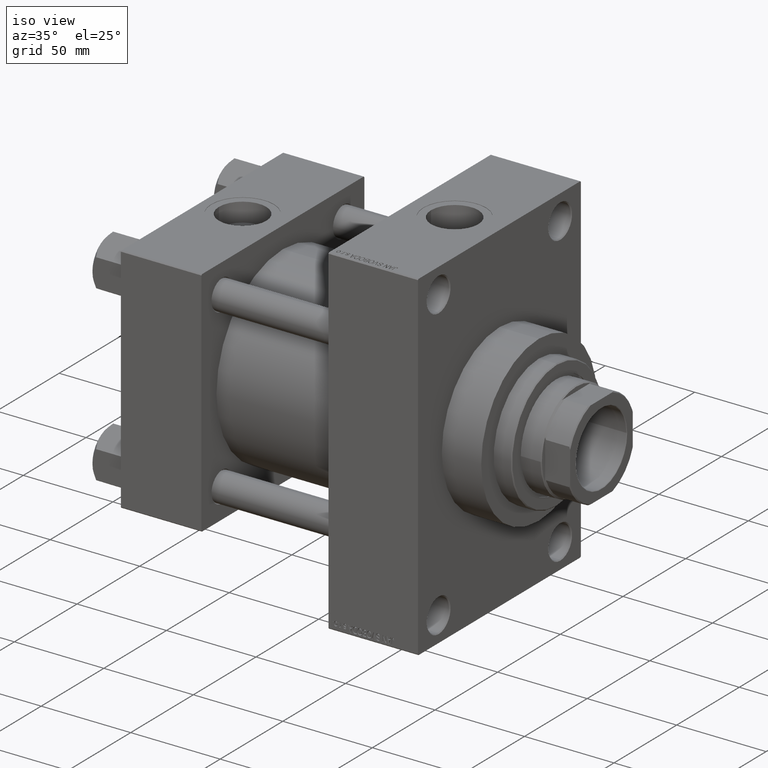
[diagram: clean part render]
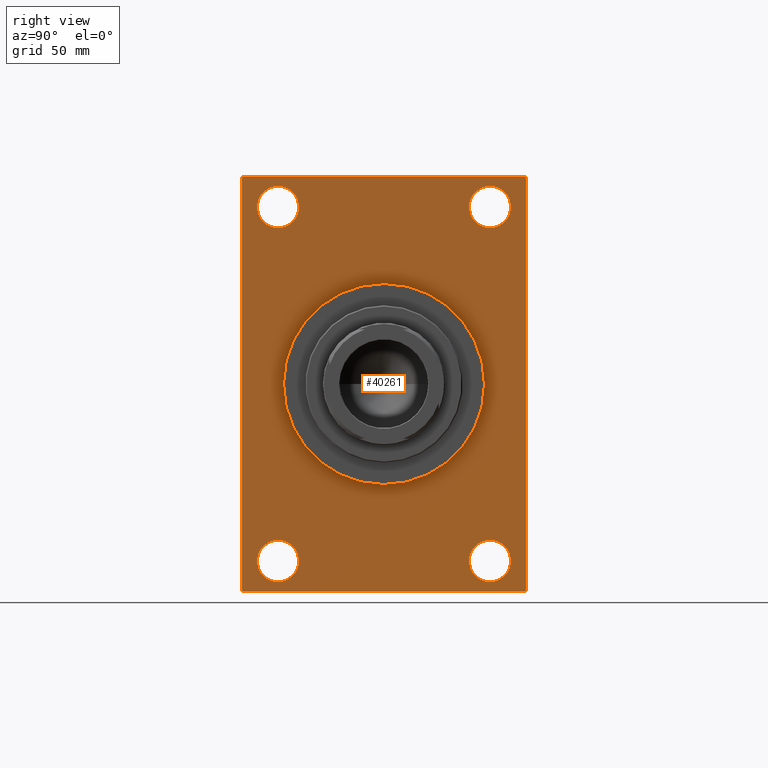
[diagram: tour spotlight — one face highlighted and labeled with its STEP entity id]
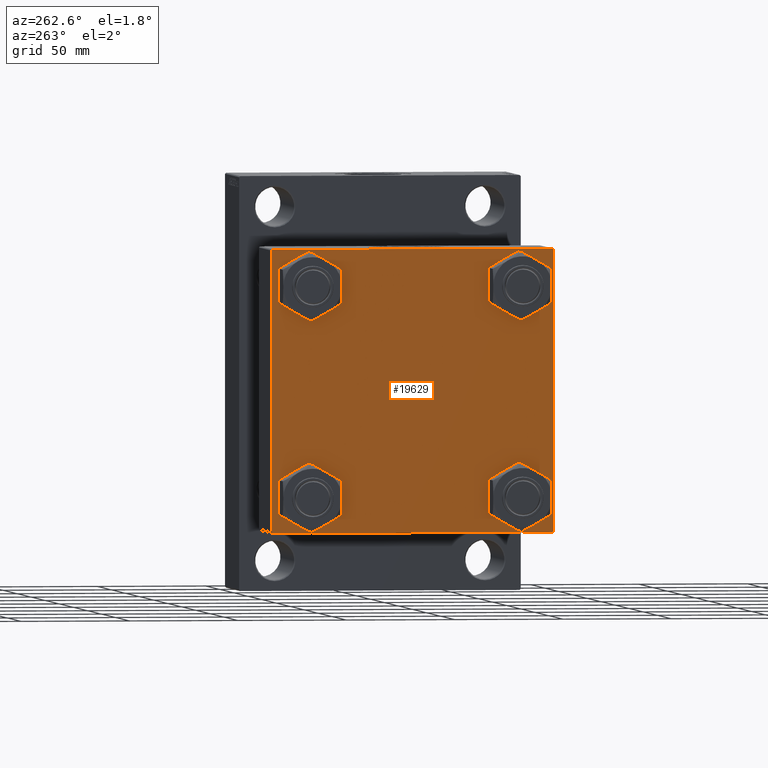
[diagram: tour spotlight — one face highlighted and labeled with its STEP entity id]
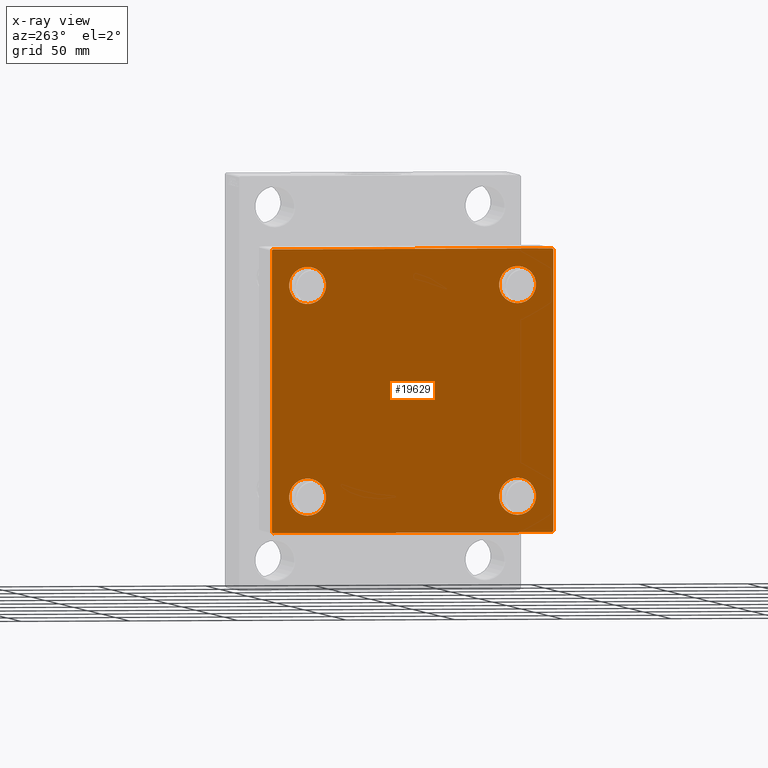
[diagram: x-ray of the same camera — body ghosted, this tour face saturated]
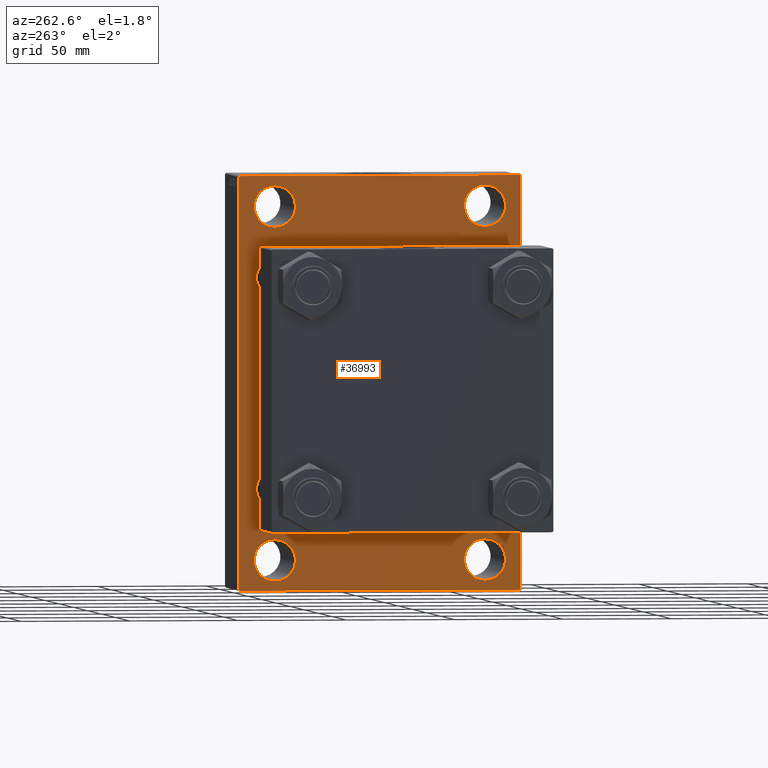
[diagram: tour spotlight — one face highlighted and labeled with its STEP entity id]
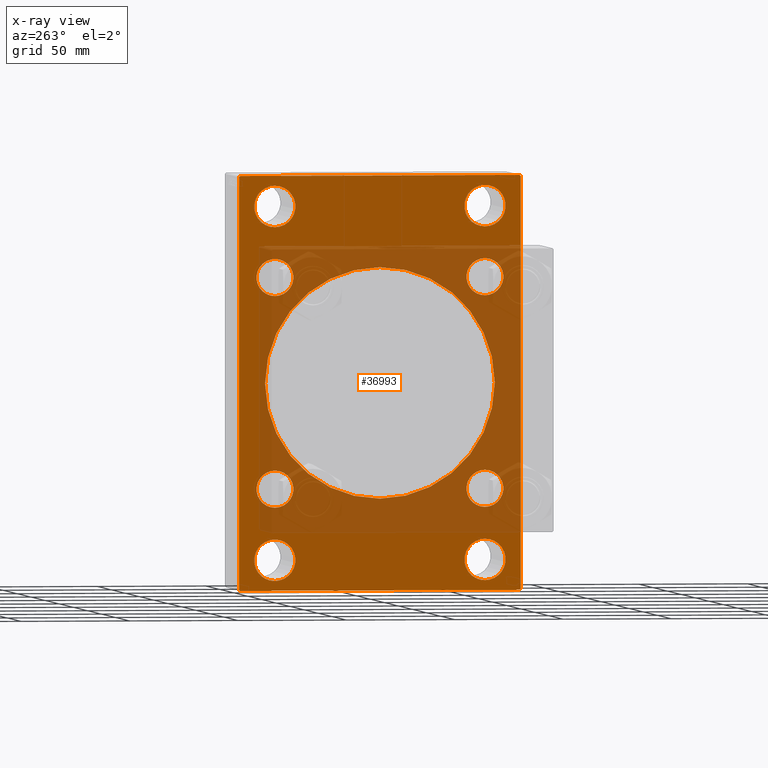
[diagram: x-ray of the same camera — body ghosted, this tour face saturated]
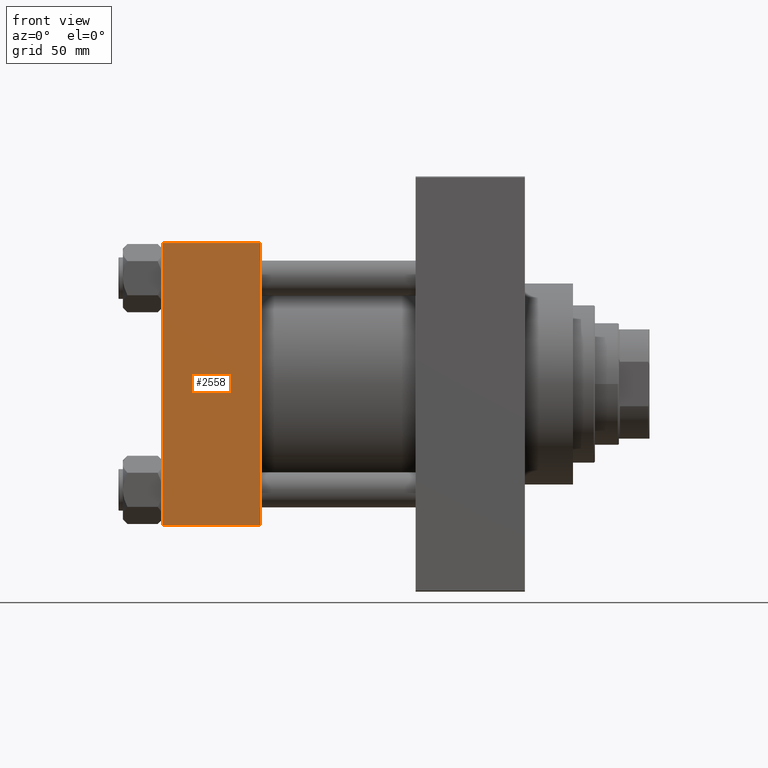
[diagram: tour spotlight — one face highlighted and labeled with its STEP entity id]
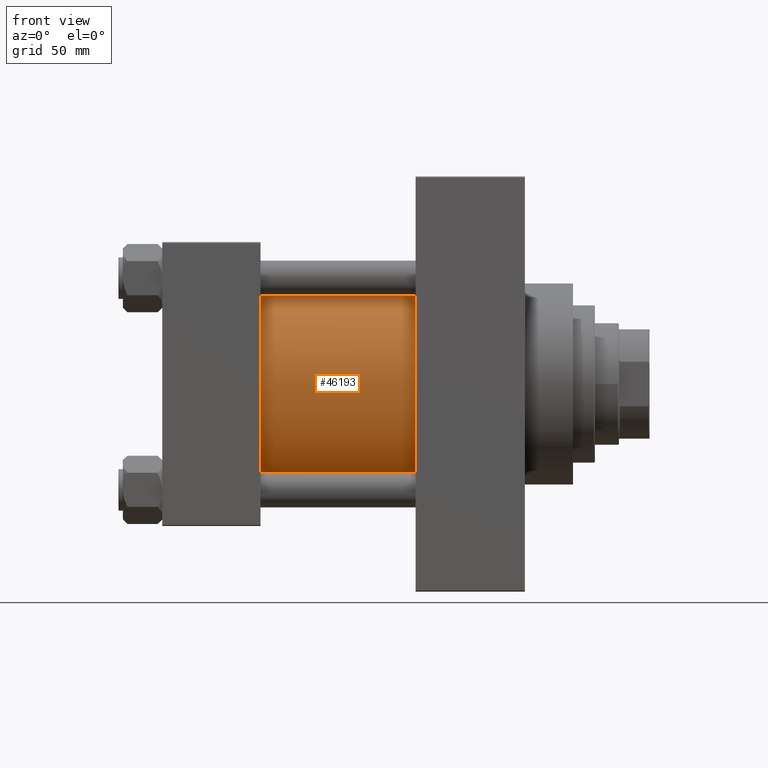
[diagram: tour spotlight — one face highlighted and labeled with its STEP entity id]
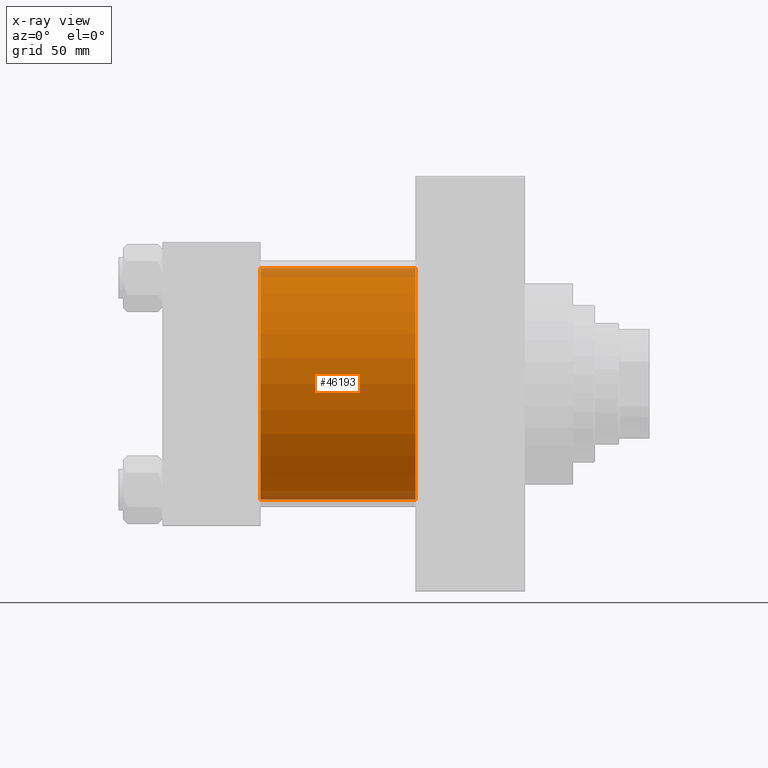
[diagram: x-ray of the same camera — body ghosted, this tour face saturated]
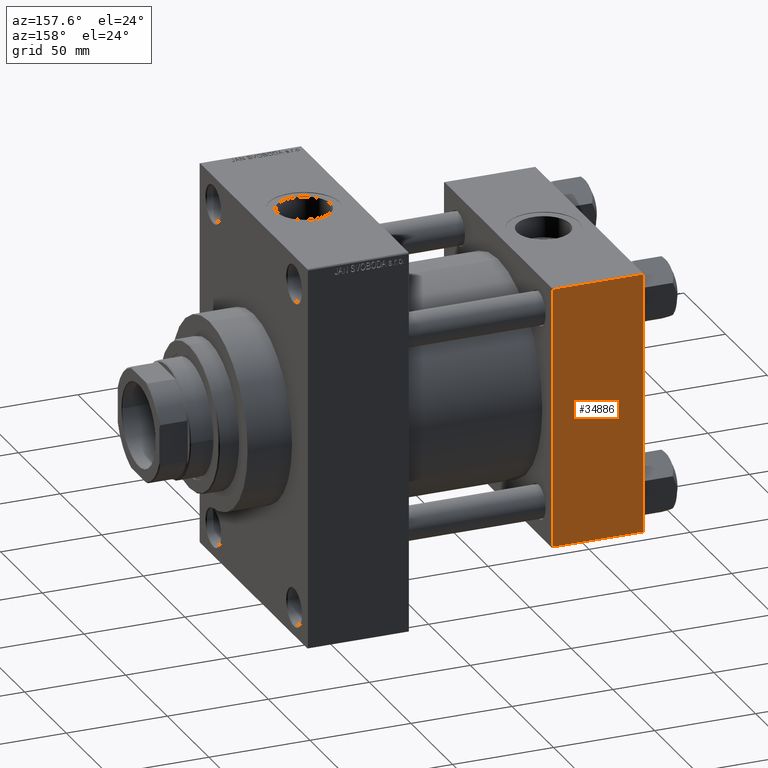
[diagram: tour spotlight — one face highlighted and labeled with its STEP entity id]
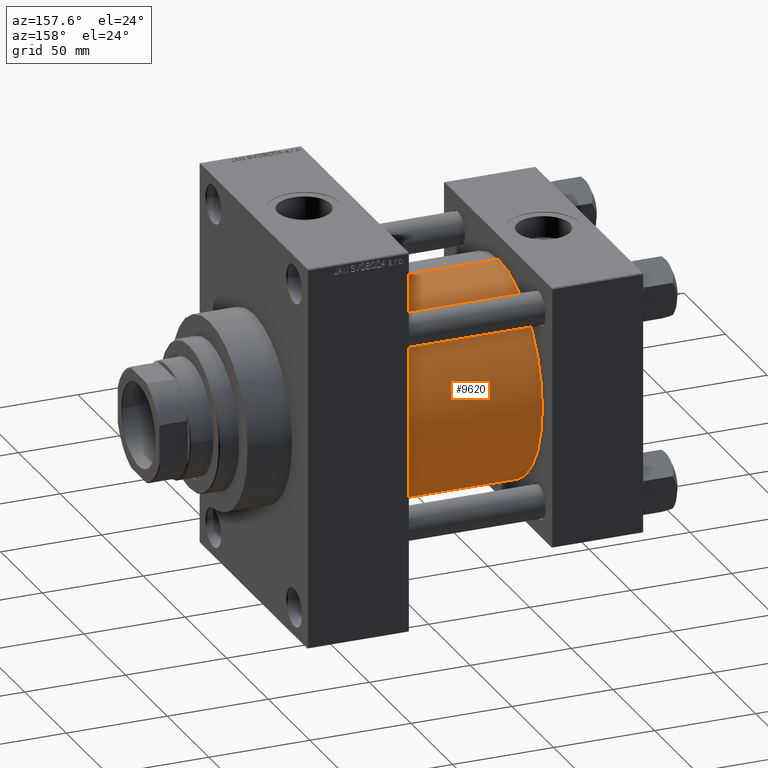
[diagram: tour spotlight — one face highlighted and labeled with its STEP entity id]
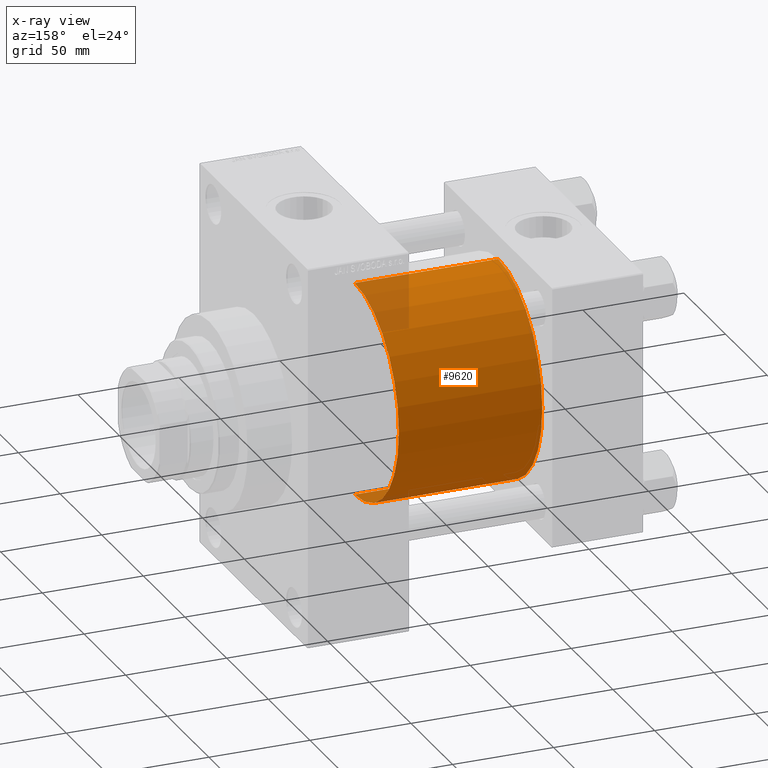
[diagram: x-ray of the same camera — body ghosted, this tour face saturated]
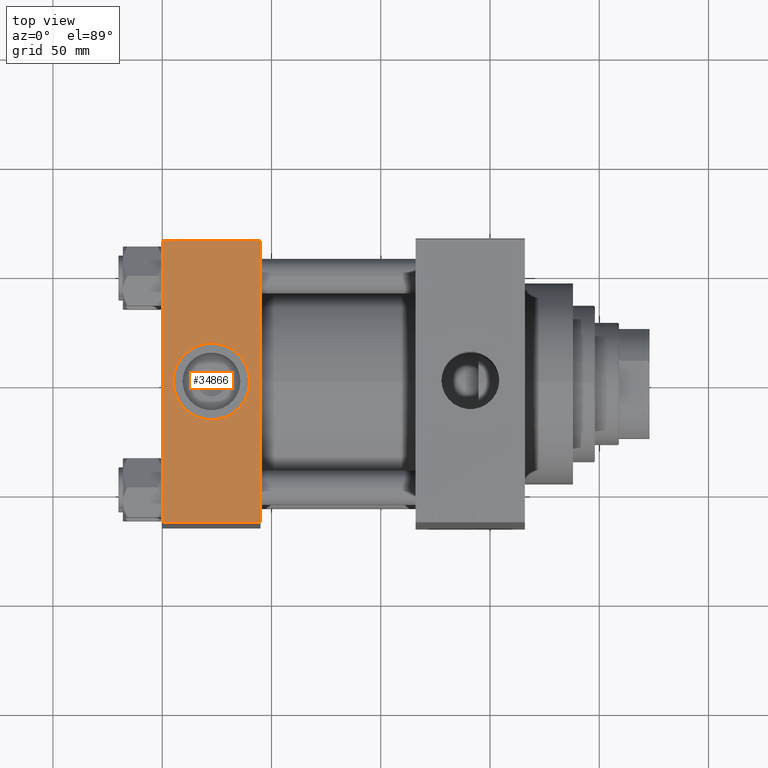
[diagram: tour spotlight — one face highlighted and labeled with its STEP entity id]
A machine part: a face-by-face anatomy tour. The part has 1151 B-rep faces; the first image is the clean iso view, then the 8 largest visible faces are spotlighted one at a time (largest first), each with its STEP entity span.

Face 1 — right view, entity #40261. In plain terms, the highlighted planar face has unit normal (-1, 0, 0).
Definition (entity closure, byte-faithful):
#1 = DIRECTION ( 'NONE',  ( 0.000000000000000000, 0.000000000000000000, 1.000000000000000000 ) ) ;
#257 = EDGE_CURVE ( 'NONE', #47620, #22330, #34401, .T. ) ;
#262 = VERTEX_POINT ( 'NONE', #1323 ) ;
#604 = VERTEX_POINT ( 'NONE', #26612 ) ;
#640 = VECTOR ( 'NONE', #4008, 1000.000000000000114 ) ;
#656 = FACE_BOUND ( 'NONE', #26778, .T. ) ;
#691 = CARTESIAN_POINT ( 'NONE',  ( 165.9999999999999716, 48.50000000000000000, -81.00000000000000000 ) ) ;
#716 = AXIS2_PLACEMENT_3D ( 'NONE', #31043, #39951, #14343 ) ;
#1054 = CIRCLE ( 'NONE', #44243, 9.500000000000008882 ) ;
#1323 = CARTESIAN_POINT ( 'NONE',  ( 165.9999999999999716, -48.50000000000000000, 90.49999999999992895 ) ) ;
#1406 = DIRECTION ( 'NONE',  ( -1.000000000000000000, -0.000000000000000000, -0.000000000000000000 ) ) ;
#1628 = CARTESIAN_POINT ( 'NONE',  ( 165.9999999999999716, 65.00000000000000000, 94.50000000000000000 ) ) ;
#1749 = ORIENTED_EDGE ( 'NONE', *, *, #24586, .T. ) ;
#1771 = EDGE_CURVE ( 'NONE', #38144, #11758, #35392, .T. ) ;
#1957 = CIRCLE ( 'NONE', #3545, 46.00000000000000000 ) ;
#2003 = CARTESIAN_POINT ( 'NONE',  ( 165.9999999999999716, -48.50000000000000000, -71.50000000000000000 ) ) ;
#2173 = VERTEX_POINT ( 'NONE', #31041 ) ;
#2220 = ORIENTED_EDGE ( 'NONE', *, *, #7231, .T. ) ;
#2403 = DIRECTION ( 'NONE',  ( -1.000000000000000000, -0.000000000000000000, -0.000000000000000000 ) ) ;
#2850 = CARTESIAN_POINT ( 'NONE',  ( 165.9999999999999716, 48.50000000000000000, -90.50000000000001421 ) ) ;
#2892 = CARTESIAN_POINT ( 'NONE',  ( 165.9999999999999716, 0.000000000000000000, 0.000000000000000000 ) ) ;
#2972 = CARTESIAN_POINT ( 'NONE',  ( 165.9999999999999716, -64.50000000000000000, -95.00000000000002842 ) ) ;
#2990 = ORIENTED_EDGE ( 'NONE', *, *, #39175, .T. ) ;
#3044 = VERTEX_POINT ( 'NONE', #26458 ) ;
#3545 = AXIS2_PLACEMENT_3D ( 'NONE', #44747, #15272, #19377 ) ;
#3928 = DIRECTION ( 'NONE',  ( 0.000000000000000000, 0.7071067811865376918, -0.7071067811865574537 ) ) ;
#4008 = DIRECTION ( 'NONE',  ( 0.000000000000000000, -0.7071067811865474617, 0.7071067811865474617 ) ) ;
#4915 = CARTESIAN_POINT ( 'NONE',  ( 165.9999999999999716, 48.50000000000000000, 81.00000000000000000 ) ) ;
#5106 = EDGE_CURVE ( 'NONE', #47620, #604, #12807, .T. ) ;
#5148 = DIRECTION ( 'NONE',  ( 0.000000000000000000, 0.000000000000000000, 1.000000000000000000 ) ) ;
#5152 = DIRECTION ( 'NONE',  ( 0.000000000000000000, 0.000000000000000000, -1.000000000000000000 ) ) ;
#5388 = CARTESIAN_POINT ( 'NONE',  ( 165.9999999999999716, -65.00000000000000000, 94.99999999999998579 ) ) ;
#5415 = AXIS2_PLACEMENT_3D ( 'NONE', #4915, #37994, #5148 ) ;
#5884 = EDGE_CURVE ( 'NONE', #28704, #31808, #34764, .T. ) ;
#6090 = EDGE_CURVE ( 'NONE', #41171, #32767, #44007, .T. ) ;
#6241 = AXIS2_PLACEMENT_3D ( 'NONE', #12401, #30994, #11687 ) ;
#6805 = EDGE_CURVE ( 'NONE', #8634, #41171, #27824, .T. ) ;
#6986 = DIRECTION ( 'NONE',  ( 0.000000000000000000, 0.000000000000000000, -1.000000000000000000 ) ) ;
#7062 = VECTOR ( 'NONE', #7709, 1000.000000000000114 ) ;
#7231 = EDGE_CURVE ( 'NONE', #2173, #8634, #15654, .T. ) ;
#7255 = CARTESIAN_POINT ( 'NONE',  ( 165.9999999999999716, 48.50000000000000000, -81.00000000000000000 ) ) ;
#7393 = EDGE_CURVE ( 'NONE', #262, #22952, #38663, .T. ) ;
#7550 = ORIENTED_EDGE ( 'NONE', *, *, #20834, .F. ) ;
#7709 = DIRECTION ( 'NONE',  ( -0.000000000000000000, -0.7071067811865474617, -0.7071067811865474617 ) ) ;
#8140 = DIRECTION ( 'NONE',  ( -1.000000000000000000, 0.000000000000000000, -0.000000000000000000 ) ) ;
#8173 = VERTEX_POINT ( 'NONE', #40329 ) ;
#8634 = VERTEX_POINT ( 'NONE', #30571 ) ;
#8706 = DIRECTION ( 'NONE',  ( -0.000000000000000000, 0.7071067811865474617, 0.7071067811865474617 ) ) ;
#8931 = CIRCLE ( 'NONE', #10488, 9.500000000000008882 ) ;
#8947 = EDGE_LOOP ( 'NONE', ( #47657, #41654, #7550, #45988, #43729, #17168, #36369, #2220 ) ) ;
#9364 = DIRECTION ( 'NONE',  ( 0.000000000000000000, 0.000000000000000000, 1.000000000000000000 ) ) ;
#9462 = CARTESIAN_POINT ( 'NONE',  ( 165.9999999999999716, 48.50000000000000000, -71.50000000000000000 ) ) ;
#9554 = CARTESIAN_POINT ( 'NONE',  ( 165.9999999999999716, 0.000000000000000000, 46.00000000000000000 ) ) ;
#9661 = EDGE_LOOP ( 'NONE', ( #33220, #13097 ) ) ;
#10488 = AXIS2_PLACEMENT_3D ( 'NONE', #25465, #24757, #25221 ) ;
#10869 = AXIS2_PLACEMENT_3D ( 'NONE', #2892, #21931, #6986 ) ;
#11687 = DIRECTION ( 'NONE',  ( 0.000000000000000000, 0.000000000000000000, 1.000000000000000000 ) ) ;
#11758 = VERTEX_POINT ( 'NONE', #9462 ) ;
#11765 = PLANE ( 'NONE',  #37758 ) ;
#11801 = DIRECTION ( 'NONE',  ( 0.000000000000000000, 0.000000000000000000, 1.000000000000000000 ) ) ;
#12140 = EDGE_LOOP ( 'NONE', ( #14382, #40414 ) ) ;
#12401 = CARTESIAN_POINT ( 'NONE',  ( 165.9999999999999716, 48.50000000000000000, 81.00000000000000000 ) ) ;
#12807 = LINE ( 'NONE', #27772, #29324 ) ;
#13097 = ORIENTED_EDGE ( 'NONE', *, *, #32087, .F. ) ;
#13383 = ORIENTED_EDGE ( 'NONE', *, *, #1771, .T. ) ;
#14300 = VECTOR ( 'NONE', #8706, 1000.000000000000114 ) ;
#14343 = DIRECTION ( 'NONE',  ( 0.000000000000000000, 0.000000000000000000, 1.000000000000000000 ) ) ;
#14382 = ORIENTED_EDGE ( 'NONE', *, *, #28212, .T. ) ;
#14567 = CARTESIAN_POINT ( 'NONE',  ( 165.9999999999999716, -64.50000000000000000, -95.00000000000002842 ) ) ;
#14574 = LINE ( 'NONE', #29322, #15120 ) ;
#15120 = VECTOR ( 'NONE', #44054, 1000.000000000000000 ) ;
#15272 = DIRECTION ( 'NONE',  ( 1.000000000000000000, 0.000000000000000000, 0.000000000000000000 ) ) ;
#15478 = VECTOR ( 'NONE', #5152, 1000.000000000000000 ) ;
#15561 = EDGE_CURVE ( 'NONE', #22500, #8173, #1957, .T. ) ;
#15654 = LINE ( 'NONE', #30394, #7062 ) ;
#16597 = CARTESIAN_POINT ( 'NONE',  ( 165.9999999999999716, -48.50000000000000000, 81.00000000000000000 ) ) ;
#16706 = EDGE_CURVE ( 'NONE', #42982, #36236, #8931, .T. ) ;
#16720 = CARTESIAN_POINT ( 'NONE',  ( 165.9999999999999716, 48.50000000000000000, 90.49999999999992895 ) ) ;
#17111 = DIRECTION ( 'NONE',  ( 0.000000000000000000, 0.000000000000000000, 1.000000000000000000 ) ) ;
#17168 = ORIENTED_EDGE ( 'NONE', *, *, #257, .T. ) ;
#19377 = DIRECTION ( 'NONE',  ( 0.000000000000000000, 0.000000000000000000, -1.000000000000000000 ) ) ;
#19955 = ORIENTED_EDGE ( 'NONE', *, *, #33058, .T. ) ;
#20047 = EDGE_CURVE ( 'NONE', #3044, #604, #26798, .T. ) ;
#20834 = EDGE_CURVE ( 'NONE', #3044, #32767, #14574, .T. ) ;
#21530 = CARTESIAN_POINT ( 'NONE',  ( 165.9999999999999716, -48.50000000000000000, 71.50000000000007105 ) ) ;
#21931 = DIRECTION ( 'NONE',  ( 1.000000000000000000, 0.000000000000000000, 0.000000000000000000 ) ) ;
#22330 = VERTEX_POINT ( 'NONE', #39787 ) ;
#22500 = VERTEX_POINT ( 'NONE', #9554 ) ;
#22750 = EDGE_LOOP ( 'NONE', ( #13383, #2990 ) ) ;
#22847 = DIRECTION ( 'NONE',  ( -0.000000000000000000, 0.000000000000000000, 1.000000000000000000 ) ) ;
#22952 = VERTEX_POINT ( 'NONE', #21530 ) ;
#23849 = EDGE_LOOP ( 'NONE', ( #25657, #19955 ) ) ;
#24079 = DIRECTION ( 'NONE',  ( -1.000000000000000000, -0.000000000000000000, -0.000000000000000000 ) ) ;
#24586 = EDGE_CURVE ( 'NONE', #22952, #262, #28365, .T. ) ;
#24757 = DIRECTION ( 'NONE',  ( -1.000000000000000000, -0.000000000000000000, -0.000000000000000000 ) ) ;
#25221 = DIRECTION ( 'NONE',  ( 0.000000000000000000, 0.000000000000000000, 1.000000000000000000 ) ) ;
#25465 = CARTESIAN_POINT ( 'NONE',  ( 165.9999999999999716, -48.50000000000000000, -81.00000000000000000 ) ) ;
#25654 = CARTESIAN_POINT ( 'NONE',  ( 165.9999999999999716, -48.50000000000000000, -90.50000000000001421 ) ) ;
#25657 = ORIENTED_EDGE ( 'NONE', *, *, #5884, .T. ) ;
#26458 = CARTESIAN_POINT ( 'NONE',  ( 165.9999999999999716, 64.50000000000000000, -95.00000000000002842 ) ) ;
#26612 = CARTESIAN_POINT ( 'NONE',  ( 165.9999999999999716, 65.00000000000000000, -94.50000000000002842 ) ) ;
#26778 = EDGE_LOOP ( 'NONE', ( #1749, #38564 ) ) ;
#26798 = LINE ( 'NONE', #45164, #14300 ) ;
#26950 = FACE_BOUND ( 'NONE', #22750, .T. ) ;
#27772 = CARTESIAN_POINT ( 'NONE',  ( 165.9999999999999716, 65.00000000000000000, 95.00000000000000000 ) ) ;
#27824 = LINE ( 'NONE', #5388, #15478 ) ;
#28000 = DIRECTION ( 'NONE',  ( 0.000000000000000000, -1.000000000000000000, -1.067522139062650425E-16 ) ) ;
#28212 = EDGE_CURVE ( 'NONE', #36236, #42982, #42353, .T. ) ;
#28365 = CIRCLE ( 'NONE', #44562, 9.499999999999925393 ) ;
#28594 = VECTOR ( 'NONE', #3928, 999.9999999999998863 ) ;
#28704 = VERTEX_POINT ( 'NONE', #42519 ) ;
#29218 = DIRECTION ( 'NONE',  ( -1.000000000000000000, -0.000000000000000000, -0.000000000000000000 ) ) ;
#29322 = CARTESIAN_POINT ( 'NONE',  ( 165.9999999999999716, 65.00000000000000000, -95.00000000000002842 ) ) ;
#29324 = VECTOR ( 'NONE', #42268, 1000.000000000000000 ) ;
#30114 = FACE_BOUND ( 'NONE', #12140, .T. ) ;
#30394 = CARTESIAN_POINT ( 'NONE',  ( 165.9999999999999716, -65.00000000000000000, 94.49999999999998579 ) ) ;
#30571 = CARTESIAN_POINT ( 'NONE',  ( 165.9999999999999716, -65.00000000000000000, 94.49999999999998579 ) ) ;
#30994 = DIRECTION ( 'NONE',  ( -1.000000000000000000, -0.000000000000000000, -0.000000000000000000 ) ) ;
#31041 = CARTESIAN_POINT ( 'NONE',  ( 165.9999999999999716, -64.50000000000000000, 94.99999999999998579 ) ) ;
#31043 = CARTESIAN_POINT ( 'NONE',  ( 165.9999999999999716, -48.50000000000000000, -81.00000000000000000 ) ) ;
#31690 = CIRCLE ( 'NONE', #10869, 46.00000000000000000 ) ;
#31808 = VERTEX_POINT ( 'NONE', #16720 ) ;
#32087 = EDGE_CURVE ( 'NONE', #8173, #22500, #31690, .T. ) ;
#32767 = VERTEX_POINT ( 'NONE', #14567 ) ;
#33058 = EDGE_CURVE ( 'NONE', #31808, #28704, #40088, .T. ) ;
#33220 = ORIENTED_EDGE ( 'NONE', *, *, #15561, .F. ) ;
#34401 = LINE ( 'NONE', #37085, #640 ) ;
#34449 = FACE_OUTER_BOUND ( 'NONE', #8947, .T. ) ;
#34764 = CIRCLE ( 'NONE', #6241, 9.499999999999925393 ) ;
#35392 = CIRCLE ( 'NONE', #47720, 9.500000000000008882 ) ;
#36236 = VERTEX_POINT ( 'NONE', #25654 ) ;
#36369 = ORIENTED_EDGE ( 'NONE', *, *, #44460, .T. ) ;
#37085 = CARTESIAN_POINT ( 'NONE',  ( 165.9999999999999716, 64.50000000000000000, 95.00000000000000000 ) ) ;
#37758 = AXIS2_PLACEMENT_3D ( 'NONE', #41224, #8140, #22847 ) ;
#37994 = DIRECTION ( 'NONE',  ( -1.000000000000000000, -0.000000000000000000, -0.000000000000000000 ) ) ;
#38144 = VERTEX_POINT ( 'NONE', #2850 ) ;
#38564 = ORIENTED_EDGE ( 'NONE', *, *, #7393, .T. ) ;
#38663 = CIRCLE ( 'NONE', #44046, 9.499999999999925393 ) ;
#39175 = EDGE_CURVE ( 'NONE', #11758, #38144, #1054, .T. ) ;
#39439 = CARTESIAN_POINT ( 'NONE',  ( 165.9999999999999716, -65.00000000000000000, -94.50000000000001421 ) ) ;
#39787 = CARTESIAN_POINT ( 'NONE',  ( 165.9999999999999716, 64.50000000000000000, 95.00000000000000000 ) ) ;
#39951 = DIRECTION ( 'NONE',  ( -1.000000000000000000, -0.000000000000000000, -0.000000000000000000 ) ) ;
#40088 = CIRCLE ( 'NONE', #5415, 9.499999999999925393 ) ;
#40261 = ADVANCED_FACE ( 'NONE', ( #656, #30114, #26950, #44843, #45548, #34449 ), #11765, .F. ) ;
#40329 = CARTESIAN_POINT ( 'NONE',  ( 165.9999999999999716, 5.633375276077824704E-15, -46.00000000000000000 ) ) ;
#40414 = ORIENTED_EDGE ( 'NONE', *, *, #16706, .T. ) ;
#41171 = VERTEX_POINT ( 'NONE', #39439 ) ;
#41224 = CARTESIAN_POINT ( 'NONE',  ( 165.9999999999999716, 0.000000000000000000, 0.000000000000000000 ) ) ;
#41654 = ORIENTED_EDGE ( 'NONE', *, *, #6090, .T. ) ;
#42225 = CARTESIAN_POINT ( 'NONE',  ( 165.9999999999999716, -48.50000000000000000, 81.00000000000000000 ) ) ;
#42268 = DIRECTION ( 'NONE',  ( 0.000000000000000000, 0.000000000000000000, -1.000000000000000000 ) ) ;
#42353 = CIRCLE ( 'NONE', #716, 9.500000000000008882 ) ;
#42519 = CARTESIAN_POINT ( 'NONE',  ( 165.9999999999999716, 48.50000000000000000, 71.50000000000007105 ) ) ;
#42982 = VERTEX_POINT ( 'NONE', #2003 ) ;
#43729 = ORIENTED_EDGE ( 'NONE', *, *, #5106, .F. ) ;
#44007 = LINE ( 'NONE', #2972, #28594 ) ;
#44046 = AXIS2_PLACEMENT_3D ( 'NONE', #16597, #24079, #9364 ) ;
#44054 = DIRECTION ( 'NONE',  ( 0.000000000000000000, -1.000000000000000000, 0.000000000000000000 ) ) ;
#44243 = AXIS2_PLACEMENT_3D ( 'NONE', #7255, #29218, #1 ) ;
#44460 = EDGE_CURVE ( 'NONE', #22330, #2173, #46107, .T. ) ;
#44562 = AXIS2_PLACEMENT_3D ( 'NONE', #42225, #2403, #17111 ) ;
#44747 = CARTESIAN_POINT ( 'NONE',  ( 165.9999999999999716, 0.000000000000000000, 0.000000000000000000 ) ) ;
#44843 = FACE_BOUND ( 'NONE', #23849, .T. ) ;
#45164 = CARTESIAN_POINT ( 'NONE',  ( 165.9999999999999716, 65.00000000000000000, -94.50000000000002842 ) ) ;
#45548 = FACE_BOUND ( 'NONE', #9661, .T. ) ;
#45988 = ORIENTED_EDGE ( 'NONE', *, *, #20047, .T. ) ;
#46107 = LINE ( 'NONE', #46355, #46376 ) ;
#46355 = CARTESIAN_POINT ( 'NONE',  ( 165.9999999999999716, 65.00000000000000000, 95.00000000000000000 ) ) ;
#46376 = VECTOR ( 'NONE', #28000, 1000.000000000000000 ) ;
#47620 = VERTEX_POINT ( 'NONE', #1628 ) ;
#47657 = ORIENTED_EDGE ( 'NONE', *, *, #6805, .T. ) ;
#47720 = AXIS2_PLACEMENT_3D ( 'NONE', #691, #1406, #11801 ) ;

Face 2 — auxiliary view, entity #19629. An x-ray twin of the same camera follows (body ghosted, this face saturated) — the face is partly hidden behind the body. In plain terms, the highlighted planar face has unit normal (-1, 0, 0).
Definition (entity closure, byte-faithful):
#53 = CARTESIAN_POINT ( 'NONE',  ( 0.000000000000000000, -65.00000000000000000, -64.49999999999995737 ) ) ;
#63 = DIRECTION ( 'NONE',  ( -0.000000000000000000, -0.7071067811865474617, -0.7071067811865474617 ) ) ;
#150 = ORIENTED_EDGE ( 'NONE', *, *, #45172, .T. ) ;
#484 = AXIS2_PLACEMENT_3D ( 'NONE', #45777, #45294, #4989 ) ;
#1250 = VECTOR ( 'NONE', #6637, 1000.000000000000000 ) ;
#1282 = CARTESIAN_POINT ( 'NONE',  ( 0.000000000000000000, 0.000000000000000000, 0.000000000000000000 ) ) ;
#2154 = EDGE_CURVE ( 'NONE', #27241, #16665, #38769, .T. ) ;
#2453 = AXIS2_PLACEMENT_3D ( 'NONE', #13875, #10503, #24504 ) ;
#2656 = EDGE_CURVE ( 'NONE', #16665, #34306, #36467, .T. ) ;
#3968 = DIRECTION ( 'NONE',  ( 1.000000000000000000, -0.000000000000000000, 0.000000000000000000 ) ) ;
#4195 = VECTOR ( 'NONE', #27086, 1000.000000000000000 ) ;
#4487 = DIRECTION ( 'NONE',  ( 1.000000000000000000, -0.000000000000000000, 0.000000000000000000 ) ) ;
#4768 = ORIENTED_EDGE ( 'NONE', *, *, #32785, .T. ) ;
#4910 = VERTEX_POINT ( 'NONE', #40385 ) ;
#4989 = DIRECTION ( 'NONE',  ( 0.000000000000000000, 0.000000000000000000, 1.000000000000000000 ) ) ;
#5297 = DIRECTION ( 'NONE',  ( 1.000000000000000000, -0.000000000000000000, 0.000000000000000000 ) ) ;
#5328 = DIRECTION ( 'NONE',  ( 0.000000000000000000, 0.000000000000000000, -1.000000000000000000 ) ) ;
#5437 = CARTESIAN_POINT ( 'NONE',  ( 0.000000000000000000, -48.44999999999998153, -39.95000000000000284 ) ) ;
#5544 = ORIENTED_EDGE ( 'NONE', *, *, #35251, .T. ) ;
#6084 = EDGE_CURVE ( 'NONE', #37911, #27241, #37001, .T. ) ;
#6637 = DIRECTION ( 'NONE',  ( 0.000000000000000000, -1.000000000000000000, -2.135044278125300850E-16 ) ) ;
#6797 = AXIS2_PLACEMENT_3D ( 'NONE', #29648, #40992, #7916 ) ;
#6847 = ORIENTED_EDGE ( 'NONE', *, *, #22426, .T. ) ;
#7859 = CARTESIAN_POINT ( 'NONE',  ( -0.000000000000000000, -64.74999999999819522, 64.75000000000179057 ) ) ;
#7916 = DIRECTION ( 'NONE',  ( 0.000000000000000000, 0.000000000000000000, 1.000000000000000000 ) ) ;
#8287 = FACE_OUTER_BOUND ( 'NONE', #33525, .T. ) ;
#8289 = DIRECTION ( 'NONE',  ( 0.000000000000000000, 0.000000000000000000, 1.000000000000000000 ) ) ;
#8698 = EDGE_CURVE ( 'NONE', #34686, #18509, #20157, .T. ) ;
#9224 = PLANE ( 'NONE',  #40557 ) ;
#9690 = EDGE_LOOP ( 'NONE', ( #4768, #39871 ) ) ;
#9777 = CARTESIAN_POINT ( 'NONE',  ( 0.000000000000000000, 65.00000000000000000, -64.99999999999998579 ) ) ;
#10037 = CARTESIAN_POINT ( 'NONE',  ( 0.000000000000000000, -64.49999999999994316, -65.00000000000001421 ) ) ;
#10503 = DIRECTION ( 'NONE',  ( 1.000000000000000000, -0.000000000000000000, 0.000000000000000000 ) ) ;
#11198 = EDGE_CURVE ( 'NONE', #40528, #27397, #40935, .T. ) ;
#11673 = CARTESIAN_POINT ( 'NONE',  ( 0.000000000000000000, 65.00000000000000000, 65.00000000000001421 ) ) ;
#12275 = CARTESIAN_POINT ( 'NONE',  ( 0.000000000000000000, 48.44999999999999574, -56.95000000000000284 ) ) ;
#12361 = LINE ( 'NONE', #37262, #4195 ) ;
#13253 = CARTESIAN_POINT ( 'NONE',  ( 0.000000000000000000, 48.44999999999999574, 48.44999999999999574 ) ) ;
#13376 = EDGE_CURVE ( 'NONE', #40528, #34306, #12361, .T. ) ;
#13529 = CARTESIAN_POINT ( 'NONE',  ( 0.000000000000000000, -48.44999999999998153, 48.45000000000000995 ) ) ;
#13697 = ORIENTED_EDGE ( 'NONE', *, *, #20557, .T. ) ;
#13758 = DIRECTION ( 'NONE',  ( 0.000000000000000000, 0.000000000000000000, 1.000000000000000000 ) ) ;
#13794 = VECTOR ( 'NONE', #46236, 1000.000000000000000 ) ;
#13875 = CARTESIAN_POINT ( 'NONE',  ( 0.000000000000000000, -48.44999999999998153, 48.45000000000000995 ) ) ;
#14034 = LINE ( 'NONE', #36503, #23253 ) ;
#14712 = AXIS2_PLACEMENT_3D ( 'NONE', #37328, #4487, #40950 ) ;
#15045 = ORIENTED_EDGE ( 'NONE', *, *, #20830, .F. ) ;
#16250 = CIRCLE ( 'NONE', #14712, 8.500000000000007105 ) ;
#16546 = CARTESIAN_POINT ( 'NONE',  ( 0.000000000000000000, 48.44999999999999574, 56.95000000000000284 ) ) ;
#16665 = VERTEX_POINT ( 'NONE', #10037 ) ;
#17205 = EDGE_LOOP ( 'NONE', ( #29123, #13697 ) ) ;
#17341 = ORIENTED_EDGE ( 'NONE', *, *, #8698, .T. ) ;
#18195 = LINE ( 'NONE', #32947, #1250 ) ;
#18509 = VERTEX_POINT ( 'NONE', #27148 ) ;
#19629 = ADVANCED_FACE ( 'NONE', ( #26857, #27337, #20319, #30499, #8287 ), #9224, .T. ) ;
#19660 = DIRECTION ( 'NONE',  ( 1.000000000000000000, -0.000000000000000000, 0.000000000000000000 ) ) ;
#19843 = ORIENTED_EDGE ( 'NONE', *, *, #2656, .T. ) ;
#20036 = CARTESIAN_POINT ( 'NONE',  ( 0.000000000000000000, 65.00000000000000000, -64.49999999999995737 ) ) ;
#20054 = CARTESIAN_POINT ( 'NONE',  ( 0.000000000000000000, -65.00000000000000000, 64.49999999999998579 ) ) ;
#20157 = CIRCLE ( 'NONE', #2453, 8.500000000000007105 ) ;
#20319 = FACE_BOUND ( 'NONE', #9690, .T. ) ;
#20557 = EDGE_CURVE ( 'NONE', #34367, #38369, #39029, .T. ) ;
#20830 = EDGE_CURVE ( 'NONE', #28363, #27397, #18195, .T. ) ;
#21287 = CIRCLE ( 'NONE', #484, 8.500000000000007105 ) ;
#22188 = AXIS2_PLACEMENT_3D ( 'NONE', #13253, #5297, #27983 ) ;
#22426 = EDGE_CURVE ( 'NONE', #44860, #45905, #21287, .T. ) ;
#22563 = DIRECTION ( 'NONE',  ( -0.000000000000000000, 0.7071067811865672237, 0.7071067811865279218 ) ) ;
#22941 = CARTESIAN_POINT ( 'NONE',  ( 0.000000000000000000, 48.44999999999999574, 39.94999999999998863 ) ) ;
#23253 = VECTOR ( 'NONE', #39641, 1000.000000000000114 ) ;
#24388 = DIRECTION ( 'NONE',  ( 1.000000000000000000, -0.000000000000000000, 0.000000000000000000 ) ) ;
#24463 = ORIENTED_EDGE ( 'NONE', *, *, #11198, .T. ) ;
#24504 = DIRECTION ( 'NONE',  ( 0.000000000000000000, 0.000000000000000000, 1.000000000000000000 ) ) ;
#24753 = EDGE_CURVE ( 'NONE', #28990, #4910, #43780, .T. ) ;
#25247 = CARTESIAN_POINT ( 'NONE',  ( 0.000000000000000000, -48.44999999999998153, -56.95000000000001705 ) ) ;
#25318 = ORIENTED_EDGE ( 'NONE', *, *, #6084, .T. ) ;
#25342 = EDGE_CURVE ( 'NONE', #38369, #34367, #42258, .T. ) ;
#25453 = VECTOR ( 'NONE', #5328, 1000.000000000000000 ) ;
#26279 = CARTESIAN_POINT ( 'NONE',  ( 0.000000000000000000, -48.44999999999998153, 56.95000000000001705 ) ) ;
#26280 = AXIS2_PLACEMENT_3D ( 'NONE', #13529, #24388, #13758 ) ;
#26857 = FACE_BOUND ( 'NONE', #35807, .T. ) ;
#27086 = DIRECTION ( 'NONE',  ( 0.000000000000000000, 0.000000000000000000, -1.000000000000000000 ) ) ;
#27148 = CARTESIAN_POINT ( 'NONE',  ( 0.000000000000000000, -48.44999999999998153, 39.95000000000000284 ) ) ;
#27241 = VERTEX_POINT ( 'NONE', #42365 ) ;
#27337 = FACE_BOUND ( 'NONE', #41099, .T. ) ;
#27397 = VERTEX_POINT ( 'NONE', #37277 ) ;
#27983 = DIRECTION ( 'NONE',  ( 0.000000000000000000, 0.000000000000000000, 1.000000000000000000 ) ) ;
#28363 = VERTEX_POINT ( 'NONE', #41856 ) ;
#28969 = CARTESIAN_POINT ( 'NONE',  ( 0.000000000000000000, -64.74999999999997158, -64.74999999999997158 ) ) ;
#28990 = VERTEX_POINT ( 'NONE', #12275 ) ;
#29123 = ORIENTED_EDGE ( 'NONE', *, *, #25342, .T. ) ;
#29648 = CARTESIAN_POINT ( 'NONE',  ( 0.000000000000000000, 48.44999999999999574, -48.44999999999999574 ) ) ;
#30499 = FACE_BOUND ( 'NONE', #17205, .T. ) ;
#30669 = EDGE_CURVE ( 'NONE', #45946, #37911, #33426, .T. ) ;
#32356 = VECTOR ( 'NONE', #44641, 1000.000000000000114 ) ;
#32538 = EDGE_CURVE ( 'NONE', #45905, #44860, #16250, .T. ) ;
#32785 = EDGE_CURVE ( 'NONE', #4910, #28990, #39407, .T. ) ;
#32947 = CARTESIAN_POINT ( 'NONE',  ( 0.000000000000000000, 65.00000000000000000, 65.00000000000001421 ) ) ;
#33426 = LINE ( 'NONE', #11673, #25453 ) ;
#33525 = EDGE_LOOP ( 'NONE', ( #34659, #25318, #37855, #19843, #41228, #24463, #15045, #150 ) ) ;
#34194 = CARTESIAN_POINT ( 'NONE',  ( 0.000000000000000000, 48.44999999999999574, 48.44999999999999574 ) ) ;
#34306 = VERTEX_POINT ( 'NONE', #53 ) ;
#34367 = VERTEX_POINT ( 'NONE', #22941 ) ;
#34659 = ORIENTED_EDGE ( 'NONE', *, *, #30669, .T. ) ;
#34686 = VERTEX_POINT ( 'NONE', #26279 ) ;
#34778 = CIRCLE ( 'NONE', #26280, 8.500000000000007105 ) ;
#35251 = EDGE_CURVE ( 'NONE', #18509, #34686, #34778, .T. ) ;
#35807 = EDGE_LOOP ( 'NONE', ( #17341, #5544 ) ) ;
#36467 = LINE ( 'NONE', #28969, #32356 ) ;
#36503 = CARTESIAN_POINT ( 'NONE',  ( 0.000000000000000000, 64.74999999999998579, 64.74999999999998579 ) ) ;
#36990 = AXIS2_PLACEMENT_3D ( 'NONE', #40434, #3968, #8289 ) ;
#37001 = LINE ( 'NONE', #39907, #45544 ) ;
#37262 = CARTESIAN_POINT ( 'NONE',  ( 0.000000000000000000, -65.00000000000000000, 64.99999999999998579 ) ) ;
#37277 = CARTESIAN_POINT ( 'NONE',  ( 0.000000000000000000, -64.49999999999997158, 64.99999999999998579 ) ) ;
#37328 = CARTESIAN_POINT ( 'NONE',  ( 0.000000000000000000, -48.44999999999998153, -48.45000000000000995 ) ) ;
#37570 = DIRECTION ( 'NONE',  ( 0.000000000000000000, 0.000000000000000000, 1.000000000000000000 ) ) ;
#37855 = ORIENTED_EDGE ( 'NONE', *, *, #2154, .T. ) ;
#37911 = VERTEX_POINT ( 'NONE', #20036 ) ;
#38275 = CARTESIAN_POINT ( 'NONE',  ( 0.000000000000000000, 65.00000000000000000, 64.49999999999998579 ) ) ;
#38369 = VERTEX_POINT ( 'NONE', #16546 ) ;
#38668 = VECTOR ( 'NONE', #22563, 1000.000000000000000 ) ;
#38769 = LINE ( 'NONE', #9777, #13794 ) ;
#39029 = CIRCLE ( 'NONE', #41336, 8.500000000000007105 ) ;
#39407 = CIRCLE ( 'NONE', #36990, 8.500000000000007105 ) ;
#39641 = DIRECTION ( 'NONE',  ( 0.000000000000000000, 0.7071067811865474617, -0.7071067811865474617 ) ) ;
#39871 = ORIENTED_EDGE ( 'NONE', *, *, #24753, .T. ) ;
#39907 = CARTESIAN_POINT ( 'NONE',  ( 0.000000000000000000, 64.74999999999997158, -64.74999999999997158 ) ) ;
#40385 = CARTESIAN_POINT ( 'NONE',  ( 0.000000000000000000, 48.44999999999999574, -39.94999999999998863 ) ) ;
#40434 = CARTESIAN_POINT ( 'NONE',  ( 0.000000000000000000, 48.44999999999999574, -48.44999999999999574 ) ) ;
#40528 = VERTEX_POINT ( 'NONE', #20054 ) ;
#40557 = AXIS2_PLACEMENT_3D ( 'NONE', #1282, #45697, #41600 ) ;
#40935 = LINE ( 'NONE', #7859, #38668 ) ;
#40950 = DIRECTION ( 'NONE',  ( 0.000000000000000000, 0.000000000000000000, 1.000000000000000000 ) ) ;
#40992 = DIRECTION ( 'NONE',  ( 1.000000000000000000, -0.000000000000000000, 0.000000000000000000 ) ) ;
#41099 = EDGE_LOOP ( 'NONE', ( #6847, #47429 ) ) ;
#41228 = ORIENTED_EDGE ( 'NONE', *, *, #13376, .F. ) ;
#41336 = AXIS2_PLACEMENT_3D ( 'NONE', #34194, #19660, #37570 ) ;
#41600 = DIRECTION ( 'NONE',  ( -0.000000000000000000, 0.000000000000000000, 1.000000000000000000 ) ) ;
#41856 = CARTESIAN_POINT ( 'NONE',  ( 0.000000000000000000, 64.49999999999997158, 65.00000000000001421 ) ) ;
#42258 = CIRCLE ( 'NONE', #22188, 8.500000000000007105 ) ;
#42365 = CARTESIAN_POINT ( 'NONE',  ( 0.000000000000000000, 64.49999999999997158, -64.99999999999998579 ) ) ;
#43780 = CIRCLE ( 'NONE', #6797, 8.500000000000007105 ) ;
#44641 = DIRECTION ( 'NONE',  ( 0.000000000000000000, -0.7071067811865474617, 0.7071067811865474617 ) ) ;
#44860 = VERTEX_POINT ( 'NONE', #5437 ) ;
#45172 = EDGE_CURVE ( 'NONE', #28363, #45946, #14034, .T. ) ;
#45294 = DIRECTION ( 'NONE',  ( 1.000000000000000000, -0.000000000000000000, 0.000000000000000000 ) ) ;
#45544 = VECTOR ( 'NONE', #63, 1000.000000000000114 ) ;
#45697 = DIRECTION ( 'NONE',  ( -1.000000000000000000, 0.000000000000000000, -0.000000000000000000 ) ) ;
#45777 = CARTESIAN_POINT ( 'NONE',  ( 0.000000000000000000, -48.44999999999998153, -48.45000000000000995 ) ) ;
#45905 = VERTEX_POINT ( 'NONE', #25247 ) ;
#45946 = VERTEX_POINT ( 'NONE', #38275 ) ;
#46236 = DIRECTION ( 'NONE',  ( 0.000000000000000000, -1.000000000000000000, -2.135044278125300850E-16 ) ) ;
#47429 = ORIENTED_EDGE ( 'NONE', *, *, #32538, .T. ) ;

Face 3 — auxiliary view, entity #36993. An x-ray twin of the same camera follows (body ghosted, this face saturated) — the face is partly hidden behind the body. In plain terms, the highlighted planar face has unit normal (-1, 0, 0).
Definition (entity closure, byte-faithful):
#85 = DIRECTION ( 'NONE',  ( -1.000000000000000000, 0.000000000000000000, -0.000000000000000000 ) ) ;
#318 = DIRECTION ( 'NONE',  ( -0.000000000000000000, 0.000000000000000000, 1.000000000000000000 ) ) ;
#684 = CARTESIAN_POINT ( 'NONE',  ( 115.9999999999999858, 3.888542821515762466E-15, -53.00000000000000711 ) ) ;
#687 = ORIENTED_EDGE ( 'NONE', *, *, #3271, .T. ) ;
#795 = VECTOR ( 'NONE', #47659, 1000.000000000000114 ) ;
#1093 = ORIENTED_EDGE ( 'NONE', *, *, #23436, .T. ) ;
#1141 = EDGE_LOOP ( 'NONE', ( #24525, #32371 ) ) ;
#1276 = DIRECTION ( 'NONE',  ( 1.000000000000000000, 0.000000000000000000, 0.000000000000000000 ) ) ;
#1290 = ORIENTED_EDGE ( 'NONE', *, *, #4276, .T. ) ;
#1320 = VERTEX_POINT ( 'NONE', #3437 ) ;
#1424 = EDGE_CURVE ( 'NONE', #1320, #9696, #46167, .T. ) ;
#1481 = EDGE_CURVE ( 'NONE', #23853, #28399, #24577, .T. ) ;
#1577 = CIRCLE ( 'NONE', #14656, 53.00000000000000711 ) ;
#2149 = LINE ( 'NONE', #22780, #33427 ) ;
#2311 = VECTOR ( 'NONE', #41319, 1000.000000000000000 ) ;
#2573 = DIRECTION ( 'NONE',  ( 0.000000000000000000, 0.000000000000000000, 1.000000000000000000 ) ) ;
#2876 = VERTEX_POINT ( 'NONE', #20692 ) ;
#3009 = CIRCLE ( 'NONE', #30742, 9.499999999999925393 ) ;
#3238 = FACE_OUTER_BOUND ( 'NONE', #14150, .T. ) ;
#3271 = EDGE_CURVE ( 'NONE', #23570, #47146, #14059, .T. ) ;
#3398 = DIRECTION ( 'NONE',  ( 1.000000000000000000, 0.000000000000000000, 0.000000000000000000 ) ) ;
#3437 = CARTESIAN_POINT ( 'NONE',  ( 115.9999999999999858, 48.50000000000000000, -90.49999999999992895 ) ) ;
#3485 = EDGE_CURVE ( 'NONE', #23570, #8203, #40852, .T. ) ;
#3552 = VERTEX_POINT ( 'NONE', #20222 ) ;
#3671 = LINE ( 'NONE', #29962, #2311 ) ;
#3999 = ORIENTED_EDGE ( 'NONE', *, *, #30673, .T. ) ;
#4276 = EDGE_CURVE ( 'NONE', #34701, #35967, #3671, .T. ) ;
#5219 = EDGE_CURVE ( 'NONE', #20668, #45618, #1577, .T. ) ;
#5268 = LINE ( 'NONE', #15650, #13578 ) ;
#5284 = AXIS2_PLACEMENT_3D ( 'NONE', #31078, #16811, #9090 ) ;
#5537 = AXIS2_PLACEMENT_3D ( 'NONE', #34354, #1276, #15980 ) ;
#5705 = CARTESIAN_POINT ( 'NONE',  ( 115.9999999999999858, 64.50000000000000000, -95.00000000000002842 ) ) ;
#5782 = AXIS2_PLACEMENT_3D ( 'NONE', #42906, #46044, #13199 ) ;
#6734 = CARTESIAN_POINT ( 'NONE',  ( 115.9999999999999858, -48.50000000000000000, 71.50000000000007105 ) ) ;
#6839 = ORIENTED_EDGE ( 'NONE', *, *, #42319, .T. ) ;
#7206 = DIRECTION ( 'NONE',  ( 1.000000000000000000, 0.000000000000000000, 0.000000000000000000 ) ) ;
#7356 = LINE ( 'NONE', #19786, #795 ) ;
#7401 = AXIS2_PLACEMENT_3D ( 'NONE', #15604, #44125, #37349 ) ;
#7593 = CIRCLE ( 'NONE', #5284, 8.500000000000007105 ) ;
#7802 = FACE_BOUND ( 'NONE', #1141, .T. ) ;
#8203 = VERTEX_POINT ( 'NONE', #30631 ) ;
#8271 = EDGE_CURVE ( 'NONE', #26329, #35508, #35217, .T. ) ;
#8409 = DIRECTION ( 'NONE',  ( 0.000000000000000000, 0.000000000000000000, 1.000000000000000000 ) ) ;
#8769 = CARTESIAN_POINT ( 'NONE',  ( 115.9999999999999858, -48.50000000000000000, -71.50000000000007105 ) ) ;
#8894 = AXIS2_PLACEMENT_3D ( 'NONE', #46942, #25195, #44049 ) ;
#8935 = DIRECTION ( 'NONE',  ( 0.000000000000000000, 0.000000000000000000, 1.000000000000000000 ) ) ;
#9090 = DIRECTION ( 'NONE',  ( 0.000000000000000000, 0.000000000000000000, 1.000000000000000000 ) ) ;
#9365 = CARTESIAN_POINT ( 'NONE',  ( 115.9999999999999858, 48.44999999999999574, 39.94999999999998863 ) ) ;
#9457 = CARTESIAN_POINT ( 'NONE',  ( 115.9999999999999858, -64.50000000000000000, 94.99999999999998579 ) ) ;
#9696 = VERTEX_POINT ( 'NONE', #32968 ) ;
#9893 = VECTOR ( 'NONE', #14434, 999.9999999999998863 ) ;
#10737 = CARTESIAN_POINT ( 'NONE',  ( 115.9999999999999858, 48.44999999999999574, -39.94999999999998863 ) ) ;
#11199 = CARTESIAN_POINT ( 'NONE',  ( 115.9999999999999858, 48.50000000000000000, 71.50000000000007105 ) ) ;
#12260 = CARTESIAN_POINT ( 'NONE',  ( 115.9999999999999858, 48.50000000000000000, -81.00000000000000000 ) ) ;
#12626 = ORIENTED_EDGE ( 'NONE', *, *, #14117, .T. ) ;
#12919 = EDGE_CURVE ( 'NONE', #28399, #23853, #42760, .T. ) ;
#13199 = DIRECTION ( 'NONE',  ( 0.000000000000000000, 0.000000000000000000, 1.000000000000000000 ) ) ;
#13370 = ORIENTED_EDGE ( 'NONE', *, *, #39379, .T. ) ;
#13578 = VECTOR ( 'NONE', #30389, 1000.000000000000000 ) ;
#13676 = CIRCLE ( 'NONE', #26004, 8.500000000000007105 ) ;
#13852 = CIRCLE ( 'NONE', #23114, 9.499999999999925393 ) ;
#13957 = VERTEX_POINT ( 'NONE', #6734 ) ;
#14059 = LINE ( 'NONE', #14772, #24616 ) ;
#14088 = EDGE_LOOP ( 'NONE', ( #33397, #26353 ) ) ;
#14117 = EDGE_CURVE ( 'NONE', #19533, #47268, #18877, .T. ) ;
#14150 = EDGE_LOOP ( 'NONE', ( #1290, #19579, #33404, #687, #25643, #3999, #43437, #13370 ) ) ;
#14434 = DIRECTION ( 'NONE',  ( 0.000000000000000000, -0.7071067811865376918, 0.7071067811865574537 ) ) ;
#14656 = AXIS2_PLACEMENT_3D ( 'NONE', #17847, #28488, #43221 ) ;
#14772 = CARTESIAN_POINT ( 'NONE',  ( 115.9999999999999858, -79.74999999999998579, 79.74999999999998579 ) ) ;
#14797 = FACE_BOUND ( 'NONE', #36667, .T. ) ;
#15077 = CARTESIAN_POINT ( 'NONE',  ( 115.9999999999999858, -48.44999999999998153, 56.95000000000001705 ) ) ;
#15359 = CIRCLE ( 'NONE', #33104, 8.500000000000007105 ) ;
#15499 = EDGE_CURVE ( 'NONE', #15856, #31084, #29727, .T. ) ;
#15604 = CARTESIAN_POINT ( 'NONE',  ( 115.9999999999999858, -48.50000000000000000, 81.00000000000000000 ) ) ;
#15650 = CARTESIAN_POINT ( 'NONE',  ( 115.9999999999999858, 65.00000000000000000, 95.00000000000000000 ) ) ;
#15822 = EDGE_CURVE ( 'NONE', #37836, #13957, #28200, .T. ) ;
#15856 = VERTEX_POINT ( 'NONE', #22831 ) ;
#15980 = DIRECTION ( 'NONE',  ( 0.000000000000000000, 0.000000000000000000, -1.000000000000000000 ) ) ;
#16185 = CARTESIAN_POINT ( 'NONE',  ( 115.9999999999999858, -48.50000000000000000, 90.49999999999992895 ) ) ;
#16196 = ORIENTED_EDGE ( 'NONE', *, *, #27357, .T. ) ;
#16456 = EDGE_CURVE ( 'NONE', #2876, #40438, #22018, .T. ) ;
#16811 = DIRECTION ( 'NONE',  ( 1.000000000000000000, 0.000000000000000000, 0.000000000000000000 ) ) ;
#17072 = DIRECTION ( 'NONE',  ( 0.000000000000000000, 0.000000000000000000, 1.000000000000000000 ) ) ;
#17094 = DIRECTION ( 'NONE',  ( 0.000000000000000000, 0.000000000000000000, -1.000000000000000000 ) ) ;
#17417 = EDGE_LOOP ( 'NONE', ( #37470, #1093 ) ) ;
#17613 = DIRECTION ( 'NONE',  ( 1.000000000000000000, 0.000000000000000000, 0.000000000000000000 ) ) ;
#17847 = CARTESIAN_POINT ( 'NONE',  ( 115.9999999999999858, -2.602085213965210642E-15, 0.000000000000000000 ) ) ;
#18215 = CARTESIAN_POINT ( 'NONE',  ( 115.9999999999999858, -64.50000000000000000, -95.00000000000002842 ) ) ;
#18875 = EDGE_LOOP ( 'NONE', ( #38032, #24885 ) ) ;
#18877 = CIRCLE ( 'NONE', #5782, 9.499999999999925393 ) ;
#19281 = CIRCLE ( 'NONE', #26985, 8.500000000000007105 ) ;
#19533 = VERTEX_POINT ( 'NONE', #11199 ) ;
#19579 = ORIENTED_EDGE ( 'NONE', *, *, #25585, .T. ) ;
#19786 = CARTESIAN_POINT ( 'NONE',  ( 115.9999999999999858, 79.75000000000000000, 79.75000000000000000 ) ) ;
#20222 = CARTESIAN_POINT ( 'NONE',  ( 115.9999999999999858, -48.44999999999998153, -39.95000000000000284 ) ) ;
#20320 = EDGE_CURVE ( 'NONE', #46475, #47146, #5268, .T. ) ;
#20467 = EDGE_LOOP ( 'NONE', ( #41006, #47062 ) ) ;
#20604 = ORIENTED_EDGE ( 'NONE', *, *, #22517, .T. ) ;
#20668 = VERTEX_POINT ( 'NONE', #43565 ) ;
#20692 = CARTESIAN_POINT ( 'NONE',  ( 115.9999999999999858, -48.44999999999998153, 39.95000000000000284 ) ) ;
#21050 = EDGE_CURVE ( 'NONE', #3552, #38581, #45948, .T. ) ;
#21520 = DIRECTION ( 'NONE',  ( -0.000000000000000000, 0.7071067811865474617, 0.7071067811865474617 ) ) ;
#21694 = AXIS2_PLACEMENT_3D ( 'NONE', #36311, #85, #318 ) ;
#22018 = CIRCLE ( 'NONE', #25115, 8.500000000000007105 ) ;
#22032 = FACE_BOUND ( 'NONE', #14088, .T. ) ;
#22151 = LINE ( 'NONE', #32321, #9893 ) ;
#22517 = EDGE_CURVE ( 'NONE', #34044, #31496, #39824, .T. ) ;
#22642 = DIRECTION ( 'NONE',  ( 1.000000000000000000, 0.000000000000000000, 0.000000000000000000 ) ) ;
#22780 = CARTESIAN_POINT ( 'NONE',  ( 115.9999999999999858, 79.75000000000000000, -79.75000000000000000 ) ) ;
#22831 = CARTESIAN_POINT ( 'NONE',  ( 115.9999999999999858, 48.44999999999999574, 56.95000000000000284 ) ) ;
#23114 = AXIS2_PLACEMENT_3D ( 'NONE', #29225, #17613, #32372 ) ;
#23360 = DIRECTION ( 'NONE',  ( 0.000000000000000000, 0.000000000000000000, 1.000000000000000000 ) ) ;
#23436 = EDGE_CURVE ( 'NONE', #31084, #15856, #13676, .T. ) ;
#23570 = VERTEX_POINT ( 'NONE', #44596 ) ;
#23853 = VERTEX_POINT ( 'NONE', #26596 ) ;
#24525 = ORIENTED_EDGE ( 'NONE', *, *, #39610, .T. ) ;
#24577 = CIRCLE ( 'NONE', #41553, 9.499999999999925393 ) ;
#24616 = VECTOR ( 'NONE', #21520, 1000.000000000000114 ) ;
#24885 = ORIENTED_EDGE ( 'NONE', *, *, #45138, .T. ) ;
#24954 = ORIENTED_EDGE ( 'NONE', *, *, #15822, .T. ) ;
#25115 = AXIS2_PLACEMENT_3D ( 'NONE', #40090, #3398, #32850 ) ;
#25195 = DIRECTION ( 'NONE',  ( 1.000000000000000000, 0.000000000000000000, 0.000000000000000000 ) ) ;
#25299 = CARTESIAN_POINT ( 'NONE',  ( 115.9999999999999858, 65.00000000000000000, 94.50000000000000000 ) ) ;
#25414 = FACE_BOUND ( 'NONE', #27486, .T. ) ;
#25573 = CIRCLE ( 'NONE', #5537, 53.00000000000000711 ) ;
#25585 = EDGE_CURVE ( 'NONE', #35967, #8203, #22151, .T. ) ;
#25643 = ORIENTED_EDGE ( 'NONE', *, *, #20320, .F. ) ;
#25664 = FACE_BOUND ( 'NONE', #18875, .T. ) ;
#25698 = CARTESIAN_POINT ( 'NONE',  ( 115.9999999999999858, -48.44999999999998153, -56.95000000000001705 ) ) ;
#25799 = EDGE_CURVE ( 'NONE', #31496, #34044, #7593, .T. ) ;
#25876 = DIRECTION ( 'NONE',  ( 1.000000000000000000, 0.000000000000000000, 0.000000000000000000 ) ) ;
#26004 = AXIS2_PLACEMENT_3D ( 'NONE', #29163, #7206, #40028 ) ;
#26329 = VERTEX_POINT ( 'NONE', #25299 ) ;
#26353 = ORIENTED_EDGE ( 'NONE', *, *, #1424, .T. ) ;
#26385 = CARTESIAN_POINT ( 'NONE',  ( 115.9999999999999858, -48.50000000000000000, 81.00000000000000000 ) ) ;
#26422 = CARTESIAN_POINT ( 'NONE',  ( 115.9999999999999858, -48.50000000000000000, -81.00000000000000000 ) ) ;
#26579 = DIRECTION ( 'NONE',  ( 0.000000000000000000, 0.000000000000000000, -1.000000000000000000 ) ) ;
#26596 = CARTESIAN_POINT ( 'NONE',  ( 115.9999999999999858, -48.50000000000000000, -90.49999999999992895 ) ) ;
#26985 = AXIS2_PLACEMENT_3D ( 'NONE', #43141, #32048, #17072 ) ;
#27357 = EDGE_CURVE ( 'NONE', #13957, #37836, #3009, .T. ) ;
#27486 = EDGE_LOOP ( 'NONE', ( #42315, #12626 ) ) ;
#28200 = CIRCLE ( 'NONE', #7401, 9.499999999999925393 ) ;
#28399 = VERTEX_POINT ( 'NONE', #8769 ) ;
#28488 = DIRECTION ( 'NONE',  ( 1.000000000000000000, 0.000000000000000000, 0.000000000000000000 ) ) ;
#28860 = AXIS2_PLACEMENT_3D ( 'NONE', #26422, #44788, #45023 ) ;
#29057 = FACE_BOUND ( 'NONE', #34838, .T. ) ;
#29163 = CARTESIAN_POINT ( 'NONE',  ( 115.9999999999999858, 48.44999999999999574, 48.44999999999999574 ) ) ;
#29225 = CARTESIAN_POINT ( 'NONE',  ( 115.9999999999999858, 48.50000000000000000, 81.00000000000000000 ) ) ;
#29307 = AXIS2_PLACEMENT_3D ( 'NONE', #12260, #22642, #23360 ) ;
#29727 = CIRCLE ( 'NONE', #8894, 8.500000000000007105 ) ;
#29962 = CARTESIAN_POINT ( 'NONE',  ( 115.9999999999999858, 65.00000000000000000, -95.00000000000002842 ) ) ;
#30019 = ORIENTED_EDGE ( 'NONE', *, *, #21050, .T. ) ;
#30345 = EDGE_CURVE ( 'NONE', #9696, #1320, #37029, .T. ) ;
#30389 = DIRECTION ( 'NONE',  ( 0.000000000000000000, -1.000000000000000000, -1.067522139062650425E-16 ) ) ;
#30421 = CARTESIAN_POINT ( 'NONE',  ( 115.9999999999999858, 48.50000000000000000, 90.49999999999992895 ) ) ;
#30565 = EDGE_LOOP ( 'NONE', ( #30019, #6839 ) ) ;
#30631 = CARTESIAN_POINT ( 'NONE',  ( 115.9999999999999858, -65.00000000000000000, -94.50000000000001421 ) ) ;
#30673 = EDGE_CURVE ( 'NONE', #46475, #26329, #7356, .T. ) ;
#30742 = AXIS2_PLACEMENT_3D ( 'NONE', #26385, #33423, #44748 ) ;
#31078 = CARTESIAN_POINT ( 'NONE',  ( 115.9999999999999858, 48.44999999999999574, -48.44999999999999574 ) ) ;
#31084 = VERTEX_POINT ( 'NONE', #9365 ) ;
#31111 = CARTESIAN_POINT ( 'NONE',  ( 115.9999999999999858, 65.00000000000000000, 95.00000000000000000 ) ) ;
#31156 = DIRECTION ( 'NONE',  ( 0.000000000000000000, 0.000000000000000000, 1.000000000000000000 ) ) ;
#31221 = CARTESIAN_POINT ( 'NONE',  ( 115.9999999999999858, 48.44999999999999574, -56.95000000000000284 ) ) ;
#31496 = VERTEX_POINT ( 'NONE', #10737 ) ;
#32048 = DIRECTION ( 'NONE',  ( 1.000000000000000000, 0.000000000000000000, 0.000000000000000000 ) ) ;
#32321 = CARTESIAN_POINT ( 'NONE',  ( 115.9999999999999858, -79.75000000000092371, -79.74999999999870681 ) ) ;
#32371 = ORIENTED_EDGE ( 'NONE', *, *, #16456, .T. ) ;
#32372 = DIRECTION ( 'NONE',  ( 0.000000000000000000, 0.000000000000000000, 1.000000000000000000 ) ) ;
#32532 = VECTOR ( 'NONE', #17094, 1000.000000000000000 ) ;
#32850 = DIRECTION ( 'NONE',  ( 0.000000000000000000, 0.000000000000000000, 1.000000000000000000 ) ) ;
#32925 = FACE_BOUND ( 'NONE', #30565, .T. ) ;
#32968 = CARTESIAN_POINT ( 'NONE',  ( 115.9999999999999858, 48.50000000000000000, -71.50000000000007105 ) ) ;
#33104 = AXIS2_PLACEMENT_3D ( 'NONE', #33617, #25876, #36291 ) ;
#33397 = ORIENTED_EDGE ( 'NONE', *, *, #30345, .T. ) ;
#33404 = ORIENTED_EDGE ( 'NONE', *, *, #3485, .F. ) ;
#33423 = DIRECTION ( 'NONE',  ( 1.000000000000000000, 0.000000000000000000, 0.000000000000000000 ) ) ;
#33427 = VECTOR ( 'NONE', #44071, 1000.000000000000114 ) ;
#33460 = ORIENTED_EDGE ( 'NONE', *, *, #25799, .T. ) ;
#33617 = CARTESIAN_POINT ( 'NONE',  ( 115.9999999999999858, -48.44999999999998153, 48.45000000000000995 ) ) ;
#34044 = VERTEX_POINT ( 'NONE', #31221 ) ;
#34076 = DIRECTION ( 'NONE',  ( 1.000000000000000000, 0.000000000000000000, 0.000000000000000000 ) ) ;
#34354 = CARTESIAN_POINT ( 'NONE',  ( 115.9999999999999858, -2.602085213965210642E-15, 0.000000000000000000 ) ) ;
#34701 = VERTEX_POINT ( 'NONE', #5705 ) ;
#34838 = EDGE_LOOP ( 'NONE', ( #33460, #20604 ) ) ;
#35217 = LINE ( 'NONE', #31111, #32532 ) ;
#35508 = VERTEX_POINT ( 'NONE', #45127 ) ;
#35967 = VERTEX_POINT ( 'NONE', #18215 ) ;
#36291 = DIRECTION ( 'NONE',  ( 0.000000000000000000, 0.000000000000000000, 1.000000000000000000 ) ) ;
#36311 = CARTESIAN_POINT ( 'NONE',  ( 115.9999999999999858, 0.000000000000000000, 0.000000000000000000 ) ) ;
#36364 = CARTESIAN_POINT ( 'NONE',  ( 115.9999999999999858, 64.50000000000000000, 95.00000000000000000 ) ) ;
#36554 = FACE_BOUND ( 'NONE', #20467, .T. ) ;
#36667 = EDGE_LOOP ( 'NONE', ( #24954, #16196 ) ) ;
#36993 = ADVANCED_FACE ( 'NONE', ( #14797, #36554, #22032, #25414, #7802, #40172, #29057, #32925, #25664, #3238 ), #47638, .T. ) ;
#37029 = CIRCLE ( 'NONE', #29307, 9.499999999999925393 ) ;
#37349 = DIRECTION ( 'NONE',  ( 0.000000000000000000, 0.000000000000000000, 1.000000000000000000 ) ) ;
#37470 = ORIENTED_EDGE ( 'NONE', *, *, #15499, .T. ) ;
#37541 = AXIS2_PLACEMENT_3D ( 'NONE', #46730, #39497, #2573 ) ;
#37836 = VERTEX_POINT ( 'NONE', #16185 ) ;
#37885 = CARTESIAN_POINT ( 'NONE',  ( 115.9999999999999858, -48.44999999999998153, -48.45000000000000995 ) ) ;
#38032 = ORIENTED_EDGE ( 'NONE', *, *, #5219, .T. ) ;
#38165 = CARTESIAN_POINT ( 'NONE',  ( 115.9999999999999858, -48.50000000000000000, -81.00000000000000000 ) ) ;
#38397 = DIRECTION ( 'NONE',  ( 1.000000000000000000, 0.000000000000000000, 0.000000000000000000 ) ) ;
#38581 = VERTEX_POINT ( 'NONE', #25698 ) ;
#39379 = EDGE_CURVE ( 'NONE', #35508, #34701, #2149, .T. ) ;
#39497 = DIRECTION ( 'NONE',  ( 1.000000000000000000, 0.000000000000000000, 0.000000000000000000 ) ) ;
#39610 = EDGE_CURVE ( 'NONE', #40438, #2876, #15359, .T. ) ;
#39824 = CIRCLE ( 'NONE', #37541, 8.500000000000007105 ) ;
#40028 = DIRECTION ( 'NONE',  ( 0.000000000000000000, 0.000000000000000000, 1.000000000000000000 ) ) ;
#40090 = CARTESIAN_POINT ( 'NONE',  ( 115.9999999999999858, -48.44999999999998153, 48.45000000000000995 ) ) ;
#40172 = FACE_BOUND ( 'NONE', #17417, .T. ) ;
#40438 = VERTEX_POINT ( 'NONE', #15077 ) ;
#40852 = LINE ( 'NONE', #45837, #42413 ) ;
#41006 = ORIENTED_EDGE ( 'NONE', *, *, #12919, .T. ) ;
#41265 = DIRECTION ( 'NONE',  ( 1.000000000000000000, 0.000000000000000000, 0.000000000000000000 ) ) ;
#41319 = DIRECTION ( 'NONE',  ( 0.000000000000000000, -1.000000000000000000, 0.000000000000000000 ) ) ;
#41350 = EDGE_CURVE ( 'NONE', #47268, #19533, #13852, .T. ) ;
#41553 = AXIS2_PLACEMENT_3D ( 'NONE', #38165, #34076, #31156 ) ;
#42019 = CARTESIAN_POINT ( 'NONE',  ( 115.9999999999999858, 48.50000000000000000, -81.00000000000000000 ) ) ;
#42315 = ORIENTED_EDGE ( 'NONE', *, *, #41350, .T. ) ;
#42319 = EDGE_CURVE ( 'NONE', #38581, #3552, #19281, .T. ) ;
#42413 = VECTOR ( 'NONE', #26579, 1000.000000000000000 ) ;
#42760 = CIRCLE ( 'NONE', #28860, 9.499999999999925393 ) ;
#42906 = CARTESIAN_POINT ( 'NONE',  ( 115.9999999999999858, 48.50000000000000000, 81.00000000000000000 ) ) ;
#43141 = CARTESIAN_POINT ( 'NONE',  ( 115.9999999999999858, -48.44999999999998153, -48.45000000000000995 ) ) ;
#43221 = DIRECTION ( 'NONE',  ( 0.000000000000000000, 0.000000000000000000, -1.000000000000000000 ) ) ;
#43437 = ORIENTED_EDGE ( 'NONE', *, *, #8271, .T. ) ;
#43565 = CARTESIAN_POINT ( 'NONE',  ( 115.9999999999999858, -2.602085213965210642E-15, 53.00000000000000711 ) ) ;
#43642 = AXIS2_PLACEMENT_3D ( 'NONE', #37885, #41265, #8409 ) ;
#43869 = AXIS2_PLACEMENT_3D ( 'NONE', #42019, #38397, #8935 ) ;
#44049 = DIRECTION ( 'NONE',  ( 0.000000000000000000, 0.000000000000000000, 1.000000000000000000 ) ) ;
#44071 = DIRECTION ( 'NONE',  ( -0.000000000000000000, -0.7071067811865474617, -0.7071067811865474617 ) ) ;
#44125 = DIRECTION ( 'NONE',  ( 1.000000000000000000, 0.000000000000000000, 0.000000000000000000 ) ) ;
#44596 = CARTESIAN_POINT ( 'NONE',  ( 115.9999999999999858, -65.00000000000000000, 94.49999999999998579 ) ) ;
#44748 = DIRECTION ( 'NONE',  ( 0.000000000000000000, 0.000000000000000000, 1.000000000000000000 ) ) ;
#44788 = DIRECTION ( 'NONE',  ( 1.000000000000000000, 0.000000000000000000, 0.000000000000000000 ) ) ;
#45023 = DIRECTION ( 'NONE',  ( 0.000000000000000000, 0.000000000000000000, 1.000000000000000000 ) ) ;
#45127 = CARTESIAN_POINT ( 'NONE',  ( 115.9999999999999858, 65.00000000000000000, -94.50000000000002842 ) ) ;
#45138 = EDGE_CURVE ( 'NONE', #45618, #20668, #25573, .T. ) ;
#45618 = VERTEX_POINT ( 'NONE', #684 ) ;
#45837 = CARTESIAN_POINT ( 'NONE',  ( 115.9999999999999858, -65.00000000000000000, 94.99999999999998579 ) ) ;
#45948 = CIRCLE ( 'NONE', #43642, 8.500000000000007105 ) ;
#46044 = DIRECTION ( 'NONE',  ( 1.000000000000000000, 0.000000000000000000, 0.000000000000000000 ) ) ;
#46167 = CIRCLE ( 'NONE', #43869, 9.499999999999925393 ) ;
#46475 = VERTEX_POINT ( 'NONE', #36364 ) ;
#46730 = CARTESIAN_POINT ( 'NONE',  ( 115.9999999999999858, 48.44999999999999574, -48.44999999999999574 ) ) ;
#46942 = CARTESIAN_POINT ( 'NONE',  ( 115.9999999999999858, 48.44999999999999574, 48.44999999999999574 ) ) ;
#47062 = ORIENTED_EDGE ( 'NONE', *, *, #1481, .T. ) ;
#47146 = VERTEX_POINT ( 'NONE', #9457 ) ;
#47268 = VERTEX_POINT ( 'NONE', #30421 ) ;
#47638 = PLANE ( 'NONE',  #21694 ) ;
#47659 = DIRECTION ( 'NONE',  ( 0.000000000000000000, 0.7071067811865474617, -0.7071067811865474617 ) ) ;

Face 4 — front view, entity #2558. In plain terms, the highlighted planar face has unit normal (0, 1, 0).
Definition (entity closure, byte-faithful):
#53 = CARTESIAN_POINT ( 'NONE',  ( 0.000000000000000000, -65.00000000000000000, -64.49999999999995737 ) ) ;
#2558 = ADVANCED_FACE ( 'NONE', ( #25089 ), #28734, .F. ) ;
#4195 = VECTOR ( 'NONE', #27086, 1000.000000000000000 ) ;
#6030 = LINE ( 'NONE', #16875, #8824 ) ;
#6057 = DIRECTION ( 'NONE',  ( 0.000000000000000000, -0.000000000000000000, 1.000000000000000000 ) ) ;
#8081 = LINE ( 'NONE', #31001, #32304 ) ;
#8524 = LINE ( 'NONE', #42307, #25874 ) ;
#8824 = VECTOR ( 'NONE', #8914, 1000.000000000000000 ) ;
#8914 = DIRECTION ( 'NONE',  ( 1.000000000000000000, 0.000000000000000000, 0.000000000000000000 ) ) ;
#12361 = LINE ( 'NONE', #37262, #4195 ) ;
#13376 = EDGE_CURVE ( 'NONE', #40528, #34306, #12361, .T. ) ;
#13755 = EDGE_CURVE ( 'NONE', #34306, #16206, #6030, .T. ) ;
#14561 = ORIENTED_EDGE ( 'NONE', *, *, #26708, .F. ) ;
#15297 = DIRECTION ( 'NONE',  ( 0.000000000000000000, 0.000000000000000000, -1.000000000000000000 ) ) ;
#16206 = VERTEX_POINT ( 'NONE', #45183 ) ;
#16875 = CARTESIAN_POINT ( 'NONE',  ( 45.00000000000000000, -65.00000000000000000, -64.49999999999995737 ) ) ;
#19669 = EDGE_CURVE ( 'NONE', #43135, #40528, #8524, .T. ) ;
#20054 = CARTESIAN_POINT ( 'NONE',  ( 0.000000000000000000, -65.00000000000000000, 64.49999999999998579 ) ) ;
#25089 = FACE_OUTER_BOUND ( 'NONE', #40388, .T. ) ;
#25874 = VECTOR ( 'NONE', #34136, 1000.000000000000000 ) ;
#26708 = EDGE_CURVE ( 'NONE', #43135, #16206, #8081, .T. ) ;
#27086 = DIRECTION ( 'NONE',  ( 0.000000000000000000, 0.000000000000000000, -1.000000000000000000 ) ) ;
#27525 = ORIENTED_EDGE ( 'NONE', *, *, #13376, .T. ) ;
#28734 = PLANE ( 'NONE',  #37732 ) ;
#31001 = CARTESIAN_POINT ( 'NONE',  ( 45.00000000000000000, -65.00000000000000000, 64.99999999999998579 ) ) ;
#32304 = VECTOR ( 'NONE', #15297, 1000.000000000000000 ) ;
#33270 = ORIENTED_EDGE ( 'NONE', *, *, #13755, .T. ) ;
#33879 = ORIENTED_EDGE ( 'NONE', *, *, #19669, .T. ) ;
#34136 = DIRECTION ( 'NONE',  ( -1.000000000000000000, 0.000000000000000000, 0.000000000000000000 ) ) ;
#34306 = VERTEX_POINT ( 'NONE', #53 ) ;
#35270 = CARTESIAN_POINT ( 'NONE',  ( 45.00000000000000000, -65.00000000000000000, 64.99999999999998579 ) ) ;
#35978 = DIRECTION ( 'NONE',  ( -0.000000000000000000, 1.000000000000000000, 0.000000000000000000 ) ) ;
#36746 = CARTESIAN_POINT ( 'NONE',  ( 45.00000000000000000, -65.00000000000000000, 64.49999999999998579 ) ) ;
#37262 = CARTESIAN_POINT ( 'NONE',  ( 0.000000000000000000, -65.00000000000000000, 64.99999999999998579 ) ) ;
#37732 = AXIS2_PLACEMENT_3D ( 'NONE', #35270, #35978, #6057 ) ;
#40388 = EDGE_LOOP ( 'NONE', ( #27525, #33270, #14561, #33879 ) ) ;
#40528 = VERTEX_POINT ( 'NONE', #20054 ) ;
#42307 = CARTESIAN_POINT ( 'NONE',  ( 45.00000000000000000, -65.00000000000000000, 64.49999999999998579 ) ) ;
#43135 = VERTEX_POINT ( 'NONE', #36746 ) ;
#45183 = CARTESIAN_POINT ( 'NONE',  ( 45.00000000000000000, -65.00000000000000000, -64.49999999999995737 ) ) ;

Face 5 — front view, entity #46193. An x-ray twin of the same camera follows (body ghosted, this face saturated) — the face is partly hidden behind the body. In plain terms, the highlighted cylindrical surface (partial cylindrical patch) has radius 53 mm, axis along (-1, -0, -0).
Definition (entity closure, byte-faithful):
#684 = CARTESIAN_POINT ( 'NONE',  ( 115.9999999999999858, 3.888542821515762466E-15, -53.00000000000000711 ) ) ;
#1577 = CIRCLE ( 'NONE', #14656, 53.00000000000000711 ) ;
#1975 = DIRECTION ( 'NONE',  ( -1.000000000000000000, -0.000000000000000000, -0.000000000000000000 ) ) ;
#2676 = EDGE_CURVE ( 'NONE', #35455, #40942, #40081, .T. ) ;
#4528 = LINE ( 'NONE', #19929, #39829 ) ;
#4700 = CARTESIAN_POINT ( 'NONE',  ( 45.00000000000000000, 3.888542821515762466E-15, -53.00000000000000711 ) ) ;
#5219 = EDGE_CURVE ( 'NONE', #20668, #45618, #1577, .T. ) ;
#7764 = VECTOR ( 'NONE', #44352, 1000.000000000000000 ) ;
#9488 = ORIENTED_EDGE ( 'NONE', *, *, #2676, .T. ) ;
#11267 = LINE ( 'NONE', #19441, #7764 ) ;
#13307 = CARTESIAN_POINT ( 'NONE',  ( 115.9999999999999858, -2.602085213965210642E-15, 0.000000000000000000 ) ) ;
#14656 = AXIS2_PLACEMENT_3D ( 'NONE', #17847, #28488, #43221 ) ;
#17616 = CYLINDRICAL_SURFACE ( 'NONE', #24851, 53.00000000000000711 ) ;
#17762 = EDGE_CURVE ( 'NONE', #20668, #35455, #4528, .T. ) ;
#17847 = CARTESIAN_POINT ( 'NONE',  ( 115.9999999999999858, -2.602085213965210642E-15, 0.000000000000000000 ) ) ;
#19441 = CARTESIAN_POINT ( 'NONE',  ( 115.9999999999999858, 3.888542821515762466E-15, -53.00000000000000711 ) ) ;
#19929 = CARTESIAN_POINT ( 'NONE',  ( 115.9999999999999858, -2.602085213965210642E-15, 53.00000000000000711 ) ) ;
#20668 = VERTEX_POINT ( 'NONE', #43565 ) ;
#23110 = ORIENTED_EDGE ( 'NONE', *, *, #17762, .T. ) ;
#24851 = AXIS2_PLACEMENT_3D ( 'NONE', #13307, #1975, #46142 ) ;
#26276 = CARTESIAN_POINT ( 'NONE',  ( 45.00000000000000000, -2.602085213965210642E-15, 0.000000000000000000 ) ) ;
#28488 = DIRECTION ( 'NONE',  ( 1.000000000000000000, 0.000000000000000000, 0.000000000000000000 ) ) ;
#28928 = ORIENTED_EDGE ( 'NONE', *, *, #5219, .F. ) ;
#30647 = EDGE_LOOP ( 'NONE', ( #39571, #28928, #23110, #9488 ) ) ;
#31317 = EDGE_CURVE ( 'NONE', #45618, #40942, #11267, .T. ) ;
#31563 = AXIS2_PLACEMENT_3D ( 'NONE', #26276, #40328, #41034 ) ;
#34454 = DIRECTION ( 'NONE',  ( -1.000000000000000000, -0.000000000000000000, -0.000000000000000000 ) ) ;
#35455 = VERTEX_POINT ( 'NONE', #41045 ) ;
#39571 = ORIENTED_EDGE ( 'NONE', *, *, #31317, .F. ) ;
#39829 = VECTOR ( 'NONE', #34454, 1000.000000000000000 ) ;
#40081 = CIRCLE ( 'NONE', #31563, 53.00000000000000711 ) ;
#40328 = DIRECTION ( 'NONE',  ( 1.000000000000000000, -0.000000000000000000, 0.000000000000000000 ) ) ;
#40942 = VERTEX_POINT ( 'NONE', #4700 ) ;
#41034 = DIRECTION ( 'NONE',  ( 0.000000000000000000, 0.000000000000000000, 1.000000000000000000 ) ) ;
#41045 = CARTESIAN_POINT ( 'NONE',  ( 45.00000000000000000, -2.602085213965210642E-15, 53.00000000000000711 ) ) ;
#43221 = DIRECTION ( 'NONE',  ( 0.000000000000000000, 0.000000000000000000, -1.000000000000000000 ) ) ;
#43565 = CARTESIAN_POINT ( 'NONE',  ( 115.9999999999999858, -2.602085213965210642E-15, 53.00000000000000711 ) ) ;
#44352 = DIRECTION ( 'NONE',  ( -1.000000000000000000, -0.000000000000000000, -0.000000000000000000 ) ) ;
#45618 = VERTEX_POINT ( 'NONE', #684 ) ;
#46142 = DIRECTION ( 'NONE',  ( 0.000000000000000000, 0.000000000000000000, 1.000000000000000000 ) ) ;
#46193 = ADVANCED_FACE ( 'NONE', ( #46393 ), #17616, .T. ) ;
#46393 = FACE_OUTER_BOUND ( 'NONE', #30647, .T. ) ;

Face 6 — auxiliary view, entity #34886. In plain terms, the highlighted planar face has unit normal (0, 1, 0).
Definition (entity closure, byte-faithful):
#348 = DIRECTION ( 'NONE',  ( -0.000000000000000000, 1.000000000000000000, 0.000000000000000000 ) ) ;
#935 = EDGE_LOOP ( 'NONE', ( #42955, #13771, #34589, #11590 ) ) ;
#2961 = LINE ( 'NONE', #43510, #8613 ) ;
#4302 = VERTEX_POINT ( 'NONE', #22470 ) ;
#4449 = DIRECTION ( 'NONE',  ( 0.000000000000000000, -0.000000000000000000, 1.000000000000000000 ) ) ;
#5328 = DIRECTION ( 'NONE',  ( 0.000000000000000000, 0.000000000000000000, -1.000000000000000000 ) ) ;
#5713 = CARTESIAN_POINT ( 'NONE',  ( 45.00000000000000000, 65.00000000000000000, 64.49999999999998579 ) ) ;
#5717 = VECTOR ( 'NONE', #33637, 1000.000000000000000 ) ;
#6964 = AXIS2_PLACEMENT_3D ( 'NONE', #26398, #348, #4449 ) ;
#8613 = VECTOR ( 'NONE', #30161, 1000.000000000000000 ) ;
#11590 = ORIENTED_EDGE ( 'NONE', *, *, #11622, .T. ) ;
#11622 = EDGE_CURVE ( 'NONE', #45946, #22497, #43789, .T. ) ;
#11673 = CARTESIAN_POINT ( 'NONE',  ( 0.000000000000000000, 65.00000000000000000, 65.00000000000001421 ) ) ;
#13771 = ORIENTED_EDGE ( 'NONE', *, *, #22731, .T. ) ;
#19009 = VECTOR ( 'NONE', #33674, 1000.000000000000000 ) ;
#20036 = CARTESIAN_POINT ( 'NONE',  ( 0.000000000000000000, 65.00000000000000000, -64.49999999999995737 ) ) ;
#22470 = CARTESIAN_POINT ( 'NONE',  ( 45.00000000000000000, 65.00000000000000000, -64.49999999999995737 ) ) ;
#22497 = VERTEX_POINT ( 'NONE', #5713 ) ;
#22731 = EDGE_CURVE ( 'NONE', #4302, #37911, #27129, .T. ) ;
#25453 = VECTOR ( 'NONE', #5328, 1000.000000000000000 ) ;
#26398 = CARTESIAN_POINT ( 'NONE',  ( 45.00000000000000000, 65.00000000000000000, 65.00000000000001421 ) ) ;
#27129 = LINE ( 'NONE', #30996, #19009 ) ;
#30161 = DIRECTION ( 'NONE',  ( 0.000000000000000000, 0.000000000000000000, -1.000000000000000000 ) ) ;
#30669 = EDGE_CURVE ( 'NONE', #45946, #37911, #33426, .T. ) ;
#30996 = CARTESIAN_POINT ( 'NONE',  ( 45.00000000000000000, 65.00000000000000000, -64.49999999999995737 ) ) ;
#33408 = CARTESIAN_POINT ( 'NONE',  ( 45.00000000000000000, 65.00000000000000000, 64.49999999999998579 ) ) ;
#33426 = LINE ( 'NONE', #11673, #25453 ) ;
#33637 = DIRECTION ( 'NONE',  ( 1.000000000000000000, 0.000000000000000000, 0.000000000000000000 ) ) ;
#33674 = DIRECTION ( 'NONE',  ( -1.000000000000000000, 0.000000000000000000, 0.000000000000000000 ) ) ;
#34589 = ORIENTED_EDGE ( 'NONE', *, *, #30669, .F. ) ;
#34886 = ADVANCED_FACE ( 'NONE', ( #41618 ), #44758, .T. ) ;
#37911 = VERTEX_POINT ( 'NONE', #20036 ) ;
#37973 = EDGE_CURVE ( 'NONE', #22497, #4302, #2961, .T. ) ;
#38275 = CARTESIAN_POINT ( 'NONE',  ( 0.000000000000000000, 65.00000000000000000, 64.49999999999998579 ) ) ;
#41618 = FACE_OUTER_BOUND ( 'NONE', #935, .T. ) ;
#42955 = ORIENTED_EDGE ( 'NONE', *, *, #37973, .T. ) ;
#43510 = CARTESIAN_POINT ( 'NONE',  ( 45.00000000000000000, 65.00000000000000000, 65.00000000000001421 ) ) ;
#43789 = LINE ( 'NONE', #33408, #5717 ) ;
#44758 = PLANE ( 'NONE',  #6964 ) ;
#45946 = VERTEX_POINT ( 'NONE', #38275 ) ;

Face 7 — auxiliary view, entity #9620. An x-ray twin of the same camera follows (body ghosted, this face saturated) — the face is partly hidden behind the body. In plain terms, the highlighted cylindrical surface (partial cylindrical patch) has radius 53 mm, axis along (-1, -0, -0).
Definition (entity closure, byte-faithful):
#684 = CARTESIAN_POINT ( 'NONE',  ( 115.9999999999999858, 3.888542821515762466E-15, -53.00000000000000711 ) ) ;
#1276 = DIRECTION ( 'NONE',  ( 1.000000000000000000, 0.000000000000000000, 0.000000000000000000 ) ) ;
#3071 = CIRCLE ( 'NONE', #12402, 53.00000000000000711 ) ;
#4528 = LINE ( 'NONE', #19929, #39829 ) ;
#4700 = CARTESIAN_POINT ( 'NONE',  ( 45.00000000000000000, 3.888542821515762466E-15, -53.00000000000000711 ) ) ;
#5537 = AXIS2_PLACEMENT_3D ( 'NONE', #34354, #1276, #15980 ) ;
#6875 = EDGE_LOOP ( 'NONE', ( #34414, #14824, #46278, #15897 ) ) ;
#7136 = AXIS2_PLACEMENT_3D ( 'NONE', #43586, #17498, #46732 ) ;
#7143 = FACE_OUTER_BOUND ( 'NONE', #6875, .T. ) ;
#7764 = VECTOR ( 'NONE', #44352, 1000.000000000000000 ) ;
#9620 = ADVANCED_FACE ( 'NONE', ( #7143 ), #17729, .T. ) ;
#11267 = LINE ( 'NONE', #19441, #7764 ) ;
#12402 = AXIS2_PLACEMENT_3D ( 'NONE', #17010, #46479, #17955 ) ;
#14824 = ORIENTED_EDGE ( 'NONE', *, *, #31317, .T. ) ;
#15897 = ORIENTED_EDGE ( 'NONE', *, *, #17762, .F. ) ;
#15980 = DIRECTION ( 'NONE',  ( 0.000000000000000000, 0.000000000000000000, -1.000000000000000000 ) ) ;
#17010 = CARTESIAN_POINT ( 'NONE',  ( 45.00000000000000000, -2.602085213965210642E-15, 0.000000000000000000 ) ) ;
#17498 = DIRECTION ( 'NONE',  ( -1.000000000000000000, -0.000000000000000000, -0.000000000000000000 ) ) ;
#17729 = CYLINDRICAL_SURFACE ( 'NONE', #7136, 53.00000000000000711 ) ;
#17762 = EDGE_CURVE ( 'NONE', #20668, #35455, #4528, .T. ) ;
#17955 = DIRECTION ( 'NONE',  ( 0.000000000000000000, 0.000000000000000000, 1.000000000000000000 ) ) ;
#19441 = CARTESIAN_POINT ( 'NONE',  ( 115.9999999999999858, 3.888542821515762466E-15, -53.00000000000000711 ) ) ;
#19929 = CARTESIAN_POINT ( 'NONE',  ( 115.9999999999999858, -2.602085213965210642E-15, 53.00000000000000711 ) ) ;
#20668 = VERTEX_POINT ( 'NONE', #43565 ) ;
#25573 = CIRCLE ( 'NONE', #5537, 53.00000000000000711 ) ;
#31317 = EDGE_CURVE ( 'NONE', #45618, #40942, #11267, .T. ) ;
#32741 = EDGE_CURVE ( 'NONE', #40942, #35455, #3071, .T. ) ;
#34354 = CARTESIAN_POINT ( 'NONE',  ( 115.9999999999999858, -2.602085213965210642E-15, 0.000000000000000000 ) ) ;
#34414 = ORIENTED_EDGE ( 'NONE', *, *, #45138, .F. ) ;
#34454 = DIRECTION ( 'NONE',  ( -1.000000000000000000, -0.000000000000000000, -0.000000000000000000 ) ) ;
#35455 = VERTEX_POINT ( 'NONE', #41045 ) ;
#39829 = VECTOR ( 'NONE', #34454, 1000.000000000000000 ) ;
#40942 = VERTEX_POINT ( 'NONE', #4700 ) ;
#41045 = CARTESIAN_POINT ( 'NONE',  ( 45.00000000000000000, -2.602085213965210642E-15, 53.00000000000000711 ) ) ;
#43565 = CARTESIAN_POINT ( 'NONE',  ( 115.9999999999999858, -2.602085213965210642E-15, 53.00000000000000711 ) ) ;
#43586 = CARTESIAN_POINT ( 'NONE',  ( 115.9999999999999858, -2.602085213965210642E-15, 0.000000000000000000 ) ) ;
#44352 = DIRECTION ( 'NONE',  ( -1.000000000000000000, -0.000000000000000000, -0.000000000000000000 ) ) ;
#45138 = EDGE_CURVE ( 'NONE', #45618, #20668, #25573, .T. ) ;
#45618 = VERTEX_POINT ( 'NONE', #684 ) ;
#46278 = ORIENTED_EDGE ( 'NONE', *, *, #32741, .T. ) ;
#46479 = DIRECTION ( 'NONE',  ( 1.000000000000000000, -0.000000000000000000, 0.000000000000000000 ) ) ;
#46732 = DIRECTION ( 'NONE',  ( 0.000000000000000000, 0.000000000000000000, 1.000000000000000000 ) ) ;

Face 8 — top view, entity #34866. In plain terms, the highlighted planar face has unit normal (0, 0, -1).
Definition (entity closure, byte-faithful):
#372 = DIRECTION ( 'NONE',  ( 1.000000000000000000, 0.000000000000000000, 0.000000000000000000 ) ) ;
#1250 = VECTOR ( 'NONE', #6637, 1000.000000000000000 ) ;
#4586 = ORIENTED_EDGE ( 'NONE', *, *, #22103, .T. ) ;
#4689 = FACE_OUTER_BOUND ( 'NONE', #10430, .T. ) ;
#4704 = CARTESIAN_POINT ( 'NONE',  ( 4.999999999999997335, -1.346937938528339560E-14, 65.00000000000000000 ) ) ;
#6637 = DIRECTION ( 'NONE',  ( 0.000000000000000000, -1.000000000000000000, -2.135044278125300850E-16 ) ) ;
#8138 = CIRCLE ( 'NONE', #8925, 17.50000000000000000 ) ;
#8925 = AXIS2_PLACEMENT_3D ( 'NONE', #43676, #25788, #40306 ) ;
#10355 = VECTOR ( 'NONE', #372, 1000.000000000000000 ) ;
#10430 = EDGE_LOOP ( 'NONE', ( #17152, #32628, #18655, #4586 ) ) ;
#12288 = EDGE_CURVE ( 'NONE', #26845, #41468, #17471, .T. ) ;
#12829 = EDGE_CURVE ( 'NONE', #27397, #41468, #33457, .T. ) ;
#17152 = ORIENTED_EDGE ( 'NONE', *, *, #20830, .T. ) ;
#17471 = LINE ( 'NONE', #21559, #18785 ) ;
#18195 = LINE ( 'NONE', #32947, #1250 ) ;
#18655 = ORIENTED_EDGE ( 'NONE', *, *, #12288, .F. ) ;
#18785 = VECTOR ( 'NONE', #47177, 1000.000000000000000 ) ;
#19199 = EDGE_CURVE ( 'NONE', #36071, #40226, #8138, .T. ) ;
#19615 = FACE_BOUND ( 'NONE', #33088, .T. ) ;
#19719 = CARTESIAN_POINT ( 'NONE',  ( 22.50000000000000000, -1.561251128379126385E-14, 65.00000000000000000 ) ) ;
#20527 = VECTOR ( 'NONE', #29272, 1000.000000000000000 ) ;
#20830 = EDGE_CURVE ( 'NONE', #28363, #27397, #18195, .T. ) ;
#21559 = CARTESIAN_POINT ( 'NONE',  ( 45.00000000000000000, 65.00000000000000000, 65.00000000000001421 ) ) ;
#22103 = EDGE_CURVE ( 'NONE', #26845, #28363, #28791, .T. ) ;
#25788 = DIRECTION ( 'NONE',  ( 0.000000000000000000, 0.000000000000000000, 1.000000000000000000 ) ) ;
#25921 = DIRECTION ( 'NONE',  ( 0.000000000000000000, 1.000000000000000000, 2.135044278125301096E-16 ) ) ;
#26098 = CIRCLE ( 'NONE', #40020, 17.50000000000000000 ) ;
#26263 = CARTESIAN_POINT ( 'NONE',  ( 45.00000000000000000, 64.49999999999997158, 65.00000000000001421 ) ) ;
#26707 = CARTESIAN_POINT ( 'NONE',  ( 45.00000000000000000, -64.49999999999997158, 64.99999999999998579 ) ) ;
#26845 = VERTEX_POINT ( 'NONE', #26263 ) ;
#27059 = EDGE_CURVE ( 'NONE', #40226, #36071, #26098, .T. ) ;
#27397 = VERTEX_POINT ( 'NONE', #37277 ) ;
#28363 = VERTEX_POINT ( 'NONE', #41856 ) ;
#28791 = LINE ( 'NONE', #43516, #20527 ) ;
#29272 = DIRECTION ( 'NONE',  ( -1.000000000000000000, 0.000000000000000000, 0.000000000000000000 ) ) ;
#32628 = ORIENTED_EDGE ( 'NONE', *, *, #12829, .T. ) ;
#32947 = CARTESIAN_POINT ( 'NONE',  ( 0.000000000000000000, 65.00000000000000000, 65.00000000000001421 ) ) ;
#33088 = EDGE_LOOP ( 'NONE', ( #47170, #46651 ) ) ;
#33218 = CARTESIAN_POINT ( 'NONE',  ( 45.00000000000000000, -64.49999999999997158, 64.99999999999998579 ) ) ;
#33457 = LINE ( 'NONE', #33218, #10355 ) ;
#34149 = CARTESIAN_POINT ( 'NONE',  ( 45.00000000000000000, 65.00000000000000000, 65.00000000000001421 ) ) ;
#34740 = AXIS2_PLACEMENT_3D ( 'NONE', #34149, #44300, #25921 ) ;
#34866 = ADVANCED_FACE ( 'NONE', ( #19615, #4689 ), #41147, .F. ) ;
#36071 = VERTEX_POINT ( 'NONE', #4704 ) ;
#37277 = CARTESIAN_POINT ( 'NONE',  ( 0.000000000000000000, -64.49999999999997158, 64.99999999999998579 ) ) ;
#40020 = AXIS2_PLACEMENT_3D ( 'NONE', #19719, #42435, #45575 ) ;
#40226 = VERTEX_POINT ( 'NONE', #45305 ) ;
#40306 = DIRECTION ( 'NONE',  ( 1.000000000000000000, 0.000000000000000000, 0.000000000000000000 ) ) ;
#41147 = PLANE ( 'NONE',  #34740 ) ;
#41468 = VERTEX_POINT ( 'NONE', #26707 ) ;
#41856 = CARTESIAN_POINT ( 'NONE',  ( 0.000000000000000000, 64.49999999999997158, 65.00000000000001421 ) ) ;
#42435 = DIRECTION ( 'NONE',  ( 0.000000000000000000, 0.000000000000000000, 1.000000000000000000 ) ) ;
#43516 = CARTESIAN_POINT ( 'NONE',  ( 0.000000000000000000, 64.49999999999997158, 65.00000000000001421 ) ) ;
#43676 = CARTESIAN_POINT ( 'NONE',  ( 22.50000000000000000, -1.561251128379126385E-14, 65.00000000000000000 ) ) ;
#44300 = DIRECTION ( 'NONE',  ( 0.000000000000000000, 2.135044278125301096E-16, -1.000000000000000000 ) ) ;
#45305 = CARTESIAN_POINT ( 'NONE',  ( 40.00000000000000000, -1.561251128379126385E-14, 65.00000000000000000 ) ) ;
#45575 = DIRECTION ( 'NONE',  ( 1.000000000000000000, 0.000000000000000000, 0.000000000000000000 ) ) ;
#46651 = ORIENTED_EDGE ( 'NONE', *, *, #19199, .F. ) ;
#47170 = ORIENTED_EDGE ( 'NONE', *, *, #27059, .F. ) ;
#47177 = DIRECTION ( 'NONE',  ( 0.000000000000000000, -1.000000000000000000, -2.135044278125300850E-16 ) ) ;